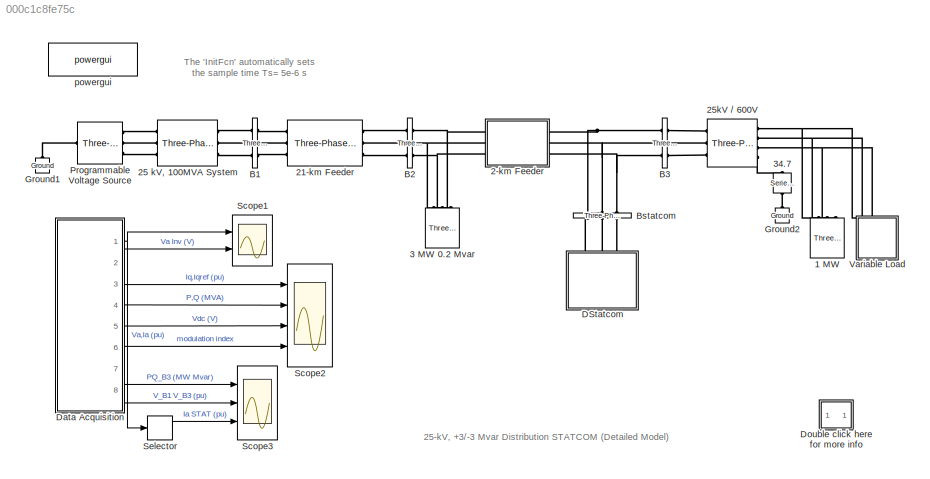
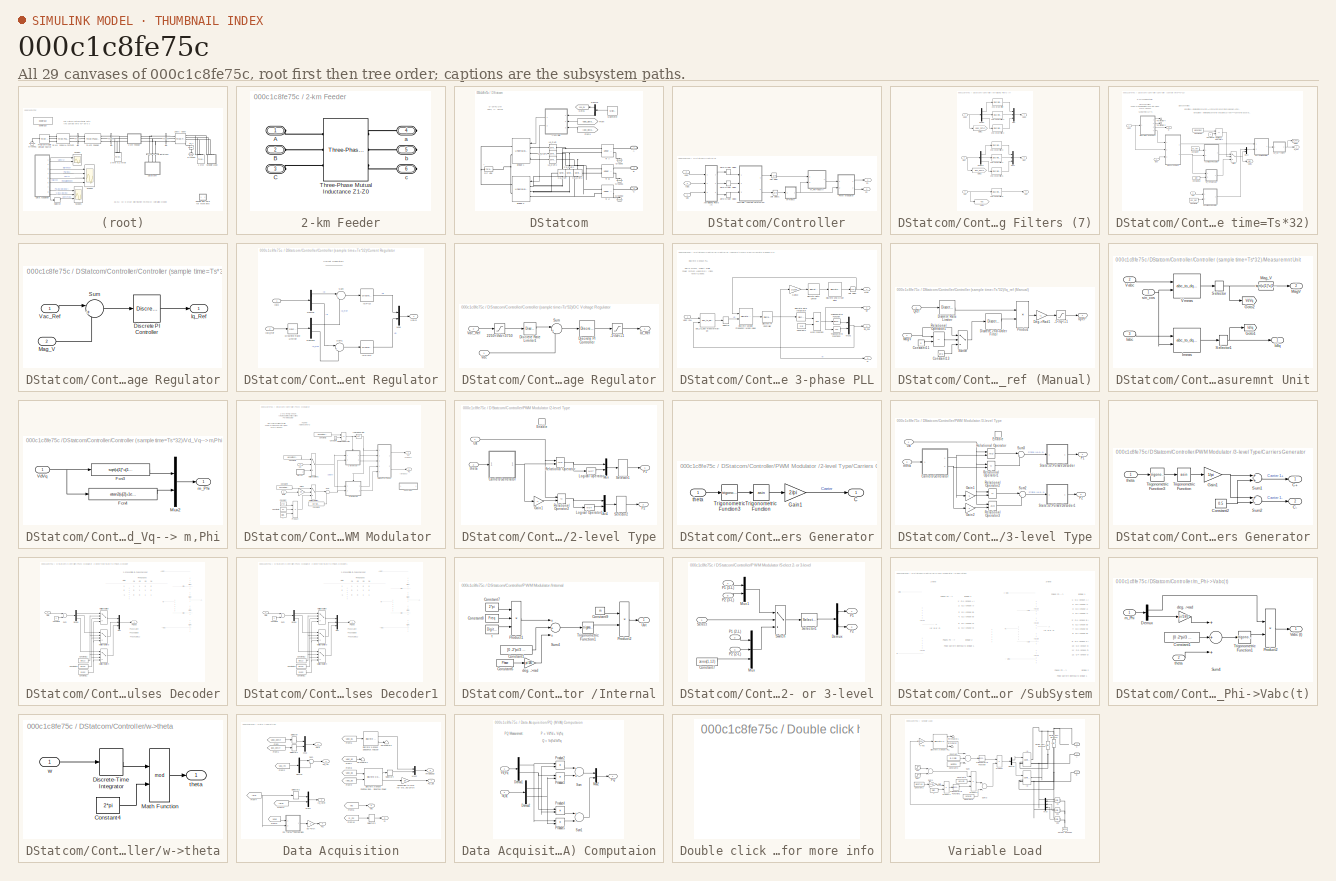
[diagram: thumbnail index - all 29 canvases of the model, root first then tree order]
MODEL slx_000c1c8fe75c
KIND model
CONFIG InitFcn =  Ts=5e-6;
BLOCK [Reference] 1 MW  REF=powerlib/Elements/Three-Phase
Parallel RLC Load
  ActivePower = 1e6
  AttributesFormatString = \n
  CapacitivePower = 0
  Configuration = Y (floating)
  InductivePower = 0
  LConnTagsString = A|B|C
  LoadType = constant Z
  Measurements = None
  NominalFrequency = 60
  NominalVoltage = 600
  Ports = [0, 0, 0, 0, 0, 3]
  SourceBlock = powerlib/Elements/Three-Phase\nParallel RLC Load
  SourceType = Three-Phase Parallel RLC Load
BLOCK [SubSystem] 2-km Feeder
  FunctionWithSeparateData = off
  MaskHideContents = off
  MinAlgLoopOccurrences = off
  Opaque = off
  Ports = [0, 0, 0, 0, 0, 3, 3]
  PropExecContextOutsideSubsystem = off
  RTWSystemCode = Auto
  RequestExecContextInheritance = off
BLOCK [PMIOPort] 2-km Feeder/A
  Port = 1
  Side = Left
BLOCK [PMIOPort] 2-km Feeder/B
  Port = 2
  Side = Left
BLOCK [PMIOPort] 2-km Feeder/C 
  Port = 3
  Side = Left
BLOCK [Reference] 2-km Feeder/Three-Phase Mutual Inductance Z1-Z0  REF=powerlib/Elements/Three-Phase
Mutual Inductance
Z1-Z0
  AttributesFormatString = \n
  LConnTagsString = a|b|c
  Ports = [0, 0, 0, 0, 0, 3, 3]
  PositiveSequence = [0.1153  1.048e-3]*2
  RConnTagsString = A|B|C
  SourceBlock = powerlib/Elements/Three-Phase\nMutual Inductance\nZ1-Z0
  SourceType = Three-Phase Mutual Inductance Z1-Z0
  ZeroSequence = [0.3963  2.730e-3]*2
BLOCK [PMIOPort] 2-km Feeder/a
  Port = 4
  Side = Right
BLOCK [PMIOPort] 2-km Feeder/b
  Port = 5
  Side = Right
BLOCK [PMIOPort] 2-km Feeder/c
  Port = 6
  Side = Right
BLOCK [Reference] 21-km Feeder  REF=powerlib/Elements/Three-Phase
PI Section Line
  AttributesFormatString = \n
  Capacitances = [11.33e-9 5.338e-9]
  Frequency = 60
  Inductances = [1.048e-3 2.730e-3]
  LConnTagsString = a|b|c
  Length = 21
  Ports = [0, 0, 0, 0, 0, 3, 3]
  RConnTagsString = A|B|C
  Resistances = [0.1153 0.3963]
  SourceBlock = powerlib/Elements/Three-Phase\nPI Section Line
  SourceType = Three-Phase PI Section Line
BLOCK [Reference] 25 kV, 100MVA System  REF=powerlib/Elements/Three-Phase
Series RLC Branch
  AttributesFormatString = \n
  BranchType = RL
  Capacitance = 1.0
  Inductance = 25e3^2/100e6/(2*pi*60)
  LConnTagsString = A|B|C
  Measurements = None
  Ports = [0, 0, 0, 0, 0, 3, 3]
  RConnTagsString = A|B|C
  Resistance = 25e3^2/100e6/10
  SourceBlock = powerlib/Elements/Three-Phase\nSeries RLC Branch
  SourceType = Three-Phase Series RLC Branch
BLOCK [Reference] 25kV // 600V  REF=powerlib/Elements/Three-Phase
Transformer
(Two Windings)
  AttributesFormatString = \n
  BreakLoop = off
  DataFile = 'basic_model'
  DataType = off
  Hysteresis = off
  InitialFluxes = [ 0.8 , -0.8 , 0.7 ]
  Lm = 500
  Measurements = None
  MoreParameters = off
  NominalPower = [6e6 60]
  Ports = [0, 0, 0, 0, 0, 3, 4]
  Rm = 500
  Saturation = [ 0,0  ;  0.005,1.2  ;  1.0,1.4 ]
  SetInitialFlux = off
  SetSaturation = off
  SourceBlock = powerlib/Elements/Three-Phase\nTransformer\n(Two Windings)
  SourceType = Three-Phase Transformer (Two Windings)
  TransfoNumber = 1
  UNITS = pu
  Winding1 = [25e3 , 0.05/30/2 , 0.05]
  Winding1Connection = Delta (D11)
  Winding2 = [600 , 0.05/30/2 , 0]
  Winding2Connection = Yn
BLOCK [Reference] 3 MW 0.2 Mvar  REF=powerlib/Elements/Three-Phase
Parallel RLC Load
  ActivePower = 3e6
  AttributesFormatString = \n
  CapacitivePower = 0.2e6
  Configuration = Y (grounded)
  InductivePower = 0
  LConnTagsString = A|B|C
  LoadType = constant Z
  Measurements = None
  NominalFrequency = 60
  NominalVoltage = 25e3
  Ports = [0, 0, 0, 0, 0, 3]
  SourceBlock = powerlib/Elements/Three-Phase\nParallel RLC Load
  SourceType = Three-Phase Parallel RLC Load
BLOCK [Reference] 34.7  REF=powerlib/Elements/Series RLC Branch
  AttributesFormatString = \n
  BranchType = R
  Capacitance = 1.0
  Inductance = 1.0
  InitialCurrent = 0
  InitialVoltage = 0
  LConnTagsString = __new0
  Measurements = None
  Ports = [0, 0, 0, 0, 0, 1, 1]
  RConnTagsString = __new0
  Resistance = 34.7
  SetiL0 = off
  Setx0 = off
  SourceBlock = powerlib/Elements/Series RLC Branch
  SourceType = Series RLC Branch
BLOCK [Reference] B1  REF=powerlib/Measurements/Three-Phase
V-I Measurement
  CurrentMeasurement = no
  Ipu = off
  LabelI = A1
  LabelV = Vabc_B1
  OutputType = Magnitude
  PSBequivalent = 0
  Pbase = 100e6
  PhasorSimulation = off
  Ports = [0, 0, 0, 0, 0, 3, 3]
  SetLabelI = off
  SetLabelV = on
  SourceBlock = powerlib/Measurements/Three-Phase\nV-I Measurement
  SourceType = Three-Phase VI Measurement
  Vbase = 25e3
  VoltageMeasurement = phase-to-ground
  Vpu = on
  VpuLL = off
BLOCK [Reference] B2  REF=powerlib/Measurements/Three-Phase
V-I Measurement
  CurrentMeasurement = no
  Ipu = off
  LabelI = Iabc_B2
  LabelV = Vabc_B2
  OutputType = Magnitude
  PSBequivalent = 0
  Pbase = 3e6
  PhasorSimulation = off
  Ports = [0, 0, 0, 0, 0, 3, 3]
  SetLabelI = off
  SetLabelV = on
  SourceBlock = powerlib/Measurements/Three-Phase\nV-I Measurement
  SourceType = Three-Phase VI Measurement
  Vbase = 25e3
  VoltageMeasurement = phase-to-ground
  Vpu = on
  VpuLL = off
BLOCK [Reference] B3  REF=powerlib/Measurements/Three-Phase
V-I Measurement
  CurrentMeasurement = yes
  Ipu = on
  LabelI = Iabc_B3
  LabelV = Vabc_B3
  OutputType = Magnitude
  PSBequivalent = 0
  Pbase = 1e6
  PhasorSimulation = off
  Ports = [0, 0, 0, 0, 0, 3, 3]
  SetLabelI = on
  SetLabelV = on
  SourceBlock = powerlib/Measurements/Three-Phase\nV-I Measurement
  SourceType = Three-Phase VI Measurement
  Vbase = 25e3
  VoltageMeasurement = phase-to-ground
  Vpu = on
  VpuLL = off
BLOCK [Reference] Bstatcom  REF=powerlib/Measurements/Three-Phase
V-I Measurement
  CurrentMeasurement = yes
  Ipu = on
  LabelI = Iabc_Bstatcom
  LabelV = Vabc_Bstatcom
  OutputType = Magnitude
  PSBequivalent = 0
  Pbase = 3e6
  PhasorSimulation = off
  Ports = [0, 0, 0, 0, 0, 3, 3]
  SetLabelI = on
  SetLabelV = on
  SourceBlock = powerlib/Measurements/Three-Phase\nV-I Measurement
  SourceType = Three-Phase VI Measurement
  Vbase = 25e3
  VoltageMeasurement = phase-to-ground
  Vpu = on
  VpuLL = off
BLOCK [SubSystem] DStatcom
  FunctionWithSeparateData = off
  MaskHideContents = off
  MinAlgLoopOccurrences = off
  Opaque = off
  Ports = [0, 0, 0, 0, 0, 0, 3]
  PropExecContextOutsideSubsystem = off
  RTWSystemCode = Auto
  RequestExecContextInheritance = off
BLOCK [PMIOPort] DStatcom/A
  Port = 1
  Side = Right
BLOCK [PMIOPort] DStatcom/B
  Port = 2
  Side = Right
BLOCK [Reference] DStatcom/Bridge 1   REF=powerlib/Power
Electronics/Universal Bridge
  Arms = 3
  AttributesFormatString = \n
  Device = IGBT / Diodes
  ForwardVoltage = .8
  ForwardVoltages = [  2  0.8  ]
  GTOparameters = [ 10e-6 , 20e-6 ]
  IGBTparameters = [ 0 0]
  Lon = 0
  Measurements = Device voltages
  Measurements_2 = None
  Ports = [1, 0, 0, 0, 0, 3, 2]
  Ron = 1e-3
  SnubberCapacitance = inf
  SnubberResistance = 1e5
  SourceBlock = powerlib/Power\nElectronics/Universal Bridge
  SourceType = Universal Bridge
  converterType = Rectifier
BLOCK [Reference] DStatcom/Bridge 2  REF=powerlib/Power
Electronics/Universal Bridge
  Arms = 3
  AttributesFormatString = \n
  Device = IGBT / Diodes
  ForwardVoltage = .8
  ForwardVoltages = [  2  0.8  ]
  GTOparameters = [ 10e-6 , 20e-6 ]
  IGBTparameters = [ 0 0]
  Lon = 0
  Measurements = Device voltages
  Measurements_2 = None
  Ports = [1, 0, 0, 0, 0, 3, 2]
  Ron = 1e-3
  SnubberCapacitance = inf
  SnubberResistance = 1e5
  SourceBlock = powerlib/Power\nElectronics/Universal Bridge
  SourceType = Universal Bridge
  converterType = Rectifier
BLOCK [PMIOPort] DStatcom/C
  Port = 3
  Side = Right
BLOCK [Reference] DStatcom/Ca_DVR  REF=powerlib/Elements/Series RLC Branch
  AttributesFormatString = \n
  BranchType = RC
  Capacitance = 100e-6
  Inductance = 1.0
  InitialCurrent = 0
  InitialVoltage = 0
  LConnTagsString = __new0
  Measurements = None
  Ports = [0, 0, 0, 0, 0, 1, 1]
  RConnTagsString = __new0
  Resistance = 100e-6*(2*pi*60)/40
  SetiL0 = off
  Setx0 = off
  SourceBlock = powerlib/Elements/Series RLC Branch
  SourceType = Series RLC Branch
BLOCK [Reference] DStatcom/Ca_DVR1  REF=powerlib/Elements/Series RLC Branch
  AttributesFormatString = \n
  BranchType = RC
  Capacitance = 100e-6
  Inductance = 1.0
  InitialCurrent = 0
  InitialVoltage = 0
  LConnTagsString = __new0
  Measurements = None
  Ports = [0, 0, 0, 0, 0, 1, 1]
  RConnTagsString = __new0
  Resistance = 100e-6*(2*pi*60)/40
  SetiL0 = off
  Setx0 = off
  SourceBlock = powerlib/Elements/Series RLC Branch
  SourceType = Series RLC Branch
BLOCK [Reference] DStatcom/Ca_DVR2  REF=powerlib/Elements/Series RLC Branch
  AttributesFormatString = \n
  BranchType = RC
  Capacitance = 100e-6
  Inductance = 1.0
  InitialCurrent = 0
  InitialVoltage = 0
  LConnTagsString = __new0
  Measurements = None
  Ports = [0, 0, 0, 0, 0, 1, 1]
  RConnTagsString = __new0
  Resistance = 100e-6*(2*pi*60)/40
  SetiL0 = off
  Setx0 = off
  SourceBlock = powerlib/Elements/Series RLC Branch
  SourceType = Series RLC Branch
BLOCK [SubSystem] DStatcom/Controller
  FunctionWithSeparateData = off
  MaskHideContents = off
  MinAlgLoopOccurrences = off
  Opaque = off
  Ports = [3, 2]
  PropExecContextOutsideSubsystem = off
  RTWSystemCode = Auto
  RequestExecContextInheritance = off
BLOCK [SubSystem] DStatcom/Controller/Anti-aliasing Filters (7)
  FunctionWithSeparateData = off
  MaskHideContents = off
  MinAlgLoopOccurrences = off
  Opaque = off
  Ports = [3, 3]
  PropExecContextOutsideSubsystem = off
  RTWSystemCode = Auto
  RequestExecContextInheritance = off
BLOCK [Outport] DStatcom/Controller/Anti-aliasing Filters (7)/ Vabc
  IconDisplay = Port number
BLOCK [Outport] DStatcom/Controller/Anti-aliasing Filters (7)/ Vdc
  IconDisplay = Port number
  Port = 3
BLOCK [Reference] DStatcom/Controller/Anti-aliasing Filters (7)/2nd-Order Filter  REF=powerlib_extras/Discrete 
Control Blocks/Discrete 
2nd-Order
Filter
  FilterType = Lowpass
  Fo = Fc
  Initialize = off
  PlotResponse = off
  Ports = [1, 1]
  SourceBlock = powerlib_extras/Discrete \nControl Blocks/Discrete \n2nd-Order\nFilter
  SourceType = Discrete 2nd-Order Filter
  Ts = Ts
  Vac_Init = [0.8 -25 60]
  Vdc_Init = -0.4
  Zeta = 0.707
  param1 = [1 5000 0.1]
BLOCK [Reference] DStatcom/Controller/Anti-aliasing Filters (7)/2nd-Order Filter1  REF=powerlib_extras/Discrete 
Control Blocks/Discrete 
2nd-Order
Filter
  FilterType = Lowpass
  Fo = Fc
  Initialize = off
  PlotResponse = off
  Ports = [1, 1]
  SourceBlock = powerlib_extras/Discrete \nControl Blocks/Discrete \n2nd-Order\nFilter
  SourceType = Discrete 2nd-Order Filter
  Ts = Ts
  Vac_Init = [0.8 -25 60]
  Vdc_Init = -0.4
  Zeta = 0.707
  param1 = [1 5000 0.1]
BLOCK [Reference] DStatcom/Controller/Anti-aliasing Filters (7)/2nd-Order Filter2  REF=powerlib_extras/Discrete 
Control Blocks/Discrete 
2nd-Order
Filter
  FilterType = Lowpass
  Fo = Fc
  Initialize = off
  PlotResponse = off
  Ports = [1, 1]
  SourceBlock = powerlib_extras/Discrete \nControl Blocks/Discrete \n2nd-Order\nFilter
  SourceType = Discrete 2nd-Order Filter
  Ts = Ts
  Vac_Init = [0.8 -25 60]
  Vdc_Init = -0.4
  Zeta = 0.707
  param1 = [1 5000 0.1]
BLOCK [Reference] DStatcom/Controller/Anti-aliasing Filters (7)/2nd-Order Filter3  REF=powerlib_extras/Discrete 
Control Blocks/Discrete 
2nd-Order
Filter
  FilterType = Lowpass
  Fo = Fc
  Initialize = off
  PlotResponse = off
  Ports = [1, 1]
  SourceBlock = powerlib_extras/Discrete \nControl Blocks/Discrete \n2nd-Order\nFilter
  SourceType = Discrete 2nd-Order Filter
  Ts = Ts
  Vac_Init = [0.8 -25 60]
  Vdc_Init = -0.4
  Zeta = 0.707
  param1 = [1 5000 0.1]
BLOCK [Reference] DStatcom/Controller/Anti-aliasing Filters (7)/2nd-Order Filter4  REF=powerlib_extras/Discrete 
Control Blocks/Discrete 
2nd-Order
Filter
  FilterType = Lowpass
  Fo = Fc
  Initialize = off
  PlotResponse = off
  Ports = [1, 1]
  SourceBlock = powerlib_extras/Discrete \nControl Blocks/Discrete \n2nd-Order\nFilter
  SourceType = Discrete 2nd-Order Filter
  Ts = Ts
  Vac_Init = [0.8 -25 60]
  Vdc_Init = -0.4
  Zeta = 0.707
  param1 = [1 5000 0.1]
BLOCK [Reference] DStatcom/Controller/Anti-aliasing Filters (7)/2nd-Order Filter5  REF=powerlib_extras/Discrete 
Control Blocks/Discrete 
2nd-Order
Filter
  FilterType = Lowpass
  Fo = Fc
  Initialize = off
  PlotResponse = off
  Ports = [1, 1]
  SourceBlock = powerlib_extras/Discrete \nControl Blocks/Discrete \n2nd-Order\nFilter
  SourceType = Discrete 2nd-Order Filter
  Ts = Ts
  Vac_Init = [0.8 -25 60]
  Vdc_Init = -0.4
  Zeta = 0.707
  param1 = [1 5000 0.1]
BLOCK [Reference] DStatcom/Controller/Anti-aliasing Filters (7)/2nd-Order Filter6  REF=powerlib_extras/Discrete 
Control Blocks/Discrete 
2nd-Order
Filter
  FilterType = Lowpass
  Fo = Fc
  Initialize = off
  PlotResponse = off
  Ports = [1, 1]
  SourceBlock = powerlib_extras/Discrete \nControl Blocks/Discrete \n2nd-Order\nFilter
  SourceType = Discrete 2nd-Order Filter
  Ts = Ts
  Vac_Init = [0.8 -25 60]
  Vdc_Init = -0.4
  Zeta = 0.707
  param1 = [1 5000 0.1]
BLOCK [Demux] DStatcom/Controller/Anti-aliasing Filters (7)/Demux
  Outputs = 3
  Ports = [1, 3]
BLOCK [Demux] DStatcom/Controller/Anti-aliasing Filters (7)/Demux1
  Outputs = 3
  Ports = [1, 3]
BLOCK [Goto] DStatcom/Controller/Anti-aliasing Filters (7)/Goto1
  GotoTag = Vabc_DSTAT
  TagVisibility = global
BLOCK [Goto] DStatcom/Controller/Anti-aliasing Filters (7)/Goto2
  GotoTag = Iabc_DSTAT
  TagVisibility = global
BLOCK [Goto] DStatcom/Controller/Anti-aliasing Filters (7)/Goto3
  GotoTag = Vdc
  TagVisibility = global
BLOCK [Outport] DStatcom/Controller/Anti-aliasing Filters (7)/Iabc
  IconDisplay = Port number
  Port = 2
BLOCK [Inport] DStatcom/Controller/Anti-aliasing Filters (7)/Iabc 
  IconDisplay = Port number
  Port = 2
  PortDimensions = 3
BLOCK [Mux] DStatcom/Controller/Anti-aliasing Filters (7)/Mux
  DisplayOption = bar
  Inputs = 3
  Ports = [3, 1]
BLOCK [Mux] DStatcom/Controller/Anti-aliasing Filters (7)/Mux1
  DisplayOption = bar
  Inputs = 3
  Ports = [3, 1]
BLOCK [Inport] DStatcom/Controller/Anti-aliasing Filters (7)/Vabc
  IconDisplay = Port number
  PortDimensions = 3
BLOCK [Inport] DStatcom/Controller/Anti-aliasing Filters (7)/Vdc 
  IconDisplay = Port number
  Port = 3
  PortDimensions = 1
BLOCK [SubSystem] DStatcom/Controller/Controller (sample time=Ts*32)
  FunctionWithSeparateData = off
  MaskHideContents = off
  MinAlgLoopOccurrences = off
  Opaque = off
  Ports = [3, 2]
  PropExecContextOutsideSubsystem = off
  RTWSystemCode = Auto
  RequestExecContextInheritance = off
BLOCK [SubSystem] DStatcom/Controller/Controller (sample time=Ts*32)/AC Voltage Regulator
  FunctionWithSeparateData = off
  MaskHideContents = off
  MinAlgLoopOccurrences = off
  Opaque = off
  Ports = [2, 1]
  PropExecContextOutsideSubsystem = off
  RTWSystemCode = Auto
  RequestExecContextInheritance = off
BLOCK [Reference] DStatcom/Controller/Controller (sample time=Ts*32)/AC Voltage Regulator/Discrete PI Controller  REF=powerlib_extras/Discrete 
Control Blocks/Discrete
PI Controller
  Init = 0
  Ki = Ki
  Kp = Kp
  Par_Limits = [1 -1]
  Ports = [1, 1]
  SourceBlock = powerlib_extras/Discrete \nControl Blocks/Discrete\nPI Controller
  SourceType = Discrete PI Controller
  Ts = Ts
BLOCK [Outport] DStatcom/Controller/Controller (sample time=Ts*32)/AC Voltage Regulator/Iq_Ref
  IconDisplay = Port number
  InitialOutput = 0
BLOCK [Inport] DStatcom/Controller/Controller (sample time=Ts*32)/AC Voltage Regulator/Mag_V
  IconDisplay = Port number
  Port = 2
BLOCK [Sum] DStatcom/Controller/Controller (sample time=Ts*32)/AC Voltage Regulator/Sum
  IconShape = round
  Inputs = |+-
  Ports = [2, 1]
BLOCK [Inport] DStatcom/Controller/Controller (sample time=Ts*32)/AC Voltage Regulator/Vac_Ref
  IconDisplay = Port number
BLOCK [Constant] DStatcom/Controller/Controller (sample time=Ts*32)/Constant10
  Value = ModeOper
BLOCK [Constant] DStatcom/Controller/Controller (sample time=Ts*32)/Constant11
BLOCK [Constant] DStatcom/Controller/Controller (sample time=Ts*32)/Constant12
  Value = Qref
BLOCK [Constant] DStatcom/Controller/Controller (sample time=Ts*32)/Constant6
  Value = Vdc_Ref
BLOCK [Constant] DStatcom/Controller/Controller (sample time=Ts*32)/Constant7
  Value = Vac_Ref
BLOCK [SubSystem] DStatcom/Controller/Controller (sample time=Ts*32)/Current Regulator
  FunctionWithSeparateData = off
  MaskHideContents = off
  MinAlgLoopOccurrences = off
  Opaque = off
  Ports = [2, 1]
  PropExecContextOutsideSubsystem = off
  RTWSystemCode = Auto
  RequestExecContextInheritance = off
BLOCK [Demux] DStatcom/Controller/Controller (sample time=Ts*32)/Current Regulator/Demux
  Outputs = 2
  Ports = [1, 2]
BLOCK [Demux] DStatcom/Controller/Controller (sample time=Ts*32)/Current Regulator/Demux1
  Outputs = 2
  Ports = [1, 2]
BLOCK [Reference] DStatcom/Controller/Controller (sample time=Ts*32)/Current Regulator/Discrete Rate Limiter  REF=powerlib_extras/Discrete 
Control Blocks/Discrete
Rate Limiter
  F = -240
  Ports = [1, 1]
  R = 240
  SourceBlock = powerlib_extras/Discrete \nControl Blocks/Discrete\nRate Limiter
  SourceType = Discrete Rate Limiter
  Ts = Ts
  Vinit = 0
BLOCK [Reference] DStatcom/Controller/Controller (sample time=Ts*32)/Current Regulator/Id PID  REF=powerlib_extras/Discrete 
Control Blocks/Discrete
PID Controller
  Init = Init
  Kd = Kd
  Ki = Ki
  Kp = Kp
  Par_Limits = Par_Limits
  Ports = [1, 1]
  SourceBlock = powerlib_extras/Discrete \nControl Blocks/Discrete\nPID Controller
  SourceType = Discrete PID Controller
  TcD = TcD
  Ts = Ts
BLOCK [Reference] DStatcom/Controller/Controller (sample time=Ts*32)/Current Regulator/Id PID1  REF=powerlib_extras/Discrete 
Control Blocks/Discrete
PID Controller
  Init = Init
  Kd = Kd
  Ki = Ki
  Kp = Kp
  Par_Limits = Par_Limits
  Ports = [1, 1]
  SourceBlock = powerlib_extras/Discrete \nControl Blocks/Discrete\nPID Controller
  SourceType = Discrete PID Controller
  TcD = TcD
  Ts = Ts
BLOCK [Inport] DStatcom/Controller/Controller (sample time=Ts*32)/Current Regulator/IdIq
  IconDisplay = Port number
  PortDimensions = 2
BLOCK [Inport] DStatcom/Controller/Controller (sample time=Ts*32)/Current Regulator/IdIq_Ref
  IconDisplay = Port number
  Port = 2
  PortDimensions = 2
BLOCK [Mux] DStatcom/Controller/Controller (sample time=Ts*32)/Current Regulator/Mux
  DisplayOption = bar
  Inputs = 2
  Ports = [2, 1]
BLOCK [Sum] DStatcom/Controller/Controller (sample time=Ts*32)/Current Regulator/Sum
  IconShape = round
  Inputs = |+-
  Ports = [2, 1]
BLOCK [Sum] DStatcom/Controller/Controller (sample time=Ts*32)/Current Regulator/Sum1
  IconShape = round
  Inputs = |+-
  Ports = [2, 1]
BLOCK [Outport] DStatcom/Controller/Controller (sample time=Ts*32)/Current Regulator/VdVq
  IconDisplay = Port number
BLOCK [SubSystem] DStatcom/Controller/Controller (sample time=Ts*32)/DC Voltage Regulator
  FunctionWithSeparateData = off
  MaskHideContents = off
  MinAlgLoopOccurrences = off
  Opaque = off
  Ports = [2, 1]
  PropExecContextOutsideSubsystem = off
  RTWSystemCode = Auto
  RequestExecContextInheritance = off
BLOCK [Saturate] DStatcom/Controller/Controller (sample time=Ts*32)/DC Voltage Regulator/-1<Id<+1
  InputPortMap = u0
  LowerLimit = -1
  Ports = [1, 1]
  UpperLimit = 1
BLOCK [Saturate] DStatcom/Controller/Controller (sample time=Ts*32)/DC Voltage Regulator/2250<Vdc<3750
  InputPortMap = u0
  LowerLimit = 2250
  Ports = [1, 1]
  UpperLimit = 3750
BLOCK [Reference] DStatcom/Controller/Controller (sample time=Ts*32)/DC Voltage Regulator/Discrete PI Controller  REF=powerlib_extras/Discrete 
Control Blocks/Discrete
PI Controller
  Init = 0
  Ki = Ki
  Kp = Kp
  Par_Limits = [1 -1]
  Ports = [1, 1]
  SourceBlock = powerlib_extras/Discrete \nControl Blocks/Discrete\nPI Controller
  SourceType = Discrete PI Controller
  Ts = Ts
BLOCK [Reference] DStatcom/Controller/Controller (sample time=Ts*32)/DC Voltage Regulator/Discrete Rate Limiter1  REF=powerlib_extras/Discrete 
Control Blocks/Discrete
Rate Limiter
  F = -10000
  Ports = [1, 1]
  R = 10000
  SourceBlock = powerlib_extras/Discrete \nControl Blocks/Discrete\nRate Limiter
  SourceType = Discrete Rate Limiter
  Ts = Ts
  Vinit = 3000
BLOCK [Outport] DStatcom/Controller/Controller (sample time=Ts*32)/DC Voltage Regulator/Id_Ref
  IconDisplay = Port number
  InitialOutput = 0
BLOCK [Sum] DStatcom/Controller/Controller (sample time=Ts*32)/DC Voltage Regulator/Sum
  IconShape = round
  Inputs = |+-
  Ports = [2, 1]
BLOCK [Inport] DStatcom/Controller/Controller (sample time=Ts*32)/DC Voltage Regulator/Vdc
  IconDisplay = Port number
BLOCK [Inport] DStatcom/Controller/Controller (sample time=Ts*32)/DC Voltage Regulator/Vdc_Ref
  IconDisplay = Port number
  Port = 2
BLOCK [SubSystem] DStatcom/Controller/Controller (sample time=Ts*32)/Discrete 3-phase PLL
  FunctionWithSeparateData = off
  MaskHideContents = off
  MinAlgLoopOccurrences = off
  Opaque = off
  Ports = [1, 4]
  PropExecContextOutsideSubsystem = off
  RTWSystemCode = Auto
  RequestExecContextInheritance = off
BLOCK [Constant] DStatcom/Controller/Controller (sample time=Ts*32)/Discrete 3-phase PLL/Constant4
  Value = 2*pi
BLOCK [Reference] DStatcom/Controller/Controller (sample time=Ts*32)/Discrete 3-phase PLL/Discrete 2nd-Order Filter  REF=powerlib_extras/Discrete 
Control Blocks/Discrete 
2nd-Order
Filter
  FilterType = Lowpass
  Fo = 25
  Initialize = on
  PlotResponse = off
  Ports = [1, 1]
  SourceBlock = powerlib_extras/Discrete \nControl Blocks/Discrete \n2nd-Order\nFilter
  SourceType = Discrete 2nd-Order Filter
  Ts = Ts
  Vac_Init = [0 0 Finit]
  Vdc_Init = Finit
  Zeta = 0.707
  param1 = [1 500 0.1]
BLOCK [Reference] DStatcom/Controller/Controller (sample time=Ts*32)/Discrete 3-phase PLL/Discrete PI Controller  REF=powerlib_extras/Discrete 
Control Blocks/Discrete
PI Controller
  Init = 2*pi*Finit
  Ki = Ki
  Kp = Kp
  Par_Limits = 2*pi*Finit*[1.25 0.75]
  Ports = [1, 1]
  SourceBlock = powerlib_extras/Discrete \nControl Blocks/Discrete\nPI Controller
  SourceType = Discrete PI Controller
  Ts = Ts
BLOCK [Reference] DStatcom/Controller/Controller (sample time=Ts*32)/Discrete 3-phase PLL/Discrete Rate Limiter  REF=powerlib_extras/Discrete 
Control Blocks/Discrete
Rate Limiter
  F = -10
  Ports = [1, 1]
  R = 10
  SourceBlock = powerlib_extras/Discrete \nControl Blocks/Discrete\nRate Limiter
  SourceType = Discrete Rate Limiter
  Ts = Ts
  Vinit = Finit
BLOCK [Reference] DStatcom/Controller/Controller (sample time=Ts*32)/Discrete 3-phase PLL/Discrete Variable Frequency Mean value  REF=powerlib_extras/Discrete
Measurements/Discrete
Variable Frequency
Mean value
  Finit = Finit
  Fmin = 45
  Ports = [2, 1]
  SourceBlock = powerlib_extras/Discrete\nMeasurements/Discrete\nVariable Frequency\nMean value
  SourceType = Discrete Variable-Frequency Mean Value
  Ts = Ts
  Vinit = 0
BLOCK [DiscreteIntegrator] DStatcom/Controller/Controller (sample time=Ts*32)/Discrete 3-phase PLL/Discrete-Time Integrator
  ICPrevOutput = DiscIntNeverNeededParam
  ICPrevScaledInput = DiscIntNeverNeededParam
  InitialCondition = Phase_Init*pi/180
  Ports = [1, 1]
  SampleTime = Ts
BLOCK [Outport] DStatcom/Controller/Controller (sample time=Ts*32)/Discrete 3-phase PLL/Freq
  IconDisplay = Port number
BLOCK [Gain] DStatcom/Controller/Controller (sample time=Ts*32)/Discrete 3-phase PLL/Gain10
  Gain = 1/2/pi
BLOCK [Math] DStatcom/Controller/Controller (sample time=Ts*32)/Discrete 3-phase PLL/Math Function
  Operator = mod
  Ports = [2, 1]
BLOCK [Mux] DStatcom/Controller/Controller (sample time=Ts*32)/Discrete 3-phase PLL/Mux2
  DisplayOption = bar
  Inputs = 2
  Ports = [2, 1]
BLOCK [Selector] DStatcom/Controller/Controller (sample time=Ts*32)/Discrete 3-phase PLL/Selector
  IndexOptions = Index vector (dialog)
  Indices = 2
  InputPortWidth = 3
  OutputSizes = 1
  Ports = [1, 1]
BLOCK [Outport] DStatcom/Controller/Controller (sample time=Ts*32)/Discrete 3-phase PLL/Sin_Cos
  IconDisplay = Port number
  Port = 4
BLOCK [Trigonometry] DStatcom/Controller/Controller (sample time=Ts*32)/Discrete 3-phase PLL/Trigonometric Function
  Ports = [1, 1]
BLOCK [Trigonometry] DStatcom/Controller/Controller (sample time=Ts*32)/Discrete 3-phase PLL/Trigonometric Function2
  Operator = cos
  Ports = [1, 1]
BLOCK [UnitDelay] DStatcom/Controller/Controller (sample time=Ts*32)/Discrete 3-phase PLL/Unit Delay
  InitialCondition = Finit
  SampleTime = Ts
BLOCK [Inport] DStatcom/Controller/Controller (sample time=Ts*32)/Discrete 3-phase PLL/Vabc (pu)
  IconDisplay = Port number
  PortDimensions = 3
BLOCK [Reference] DStatcom/Controller/Controller (sample time=Ts*32)/Discrete 3-phase PLL/abc_to_dq0 Transformation  REF=powerlib_extras/Measurements/abc_to_dq0
Transformation
  Ports = [2, 1]
  SourceBlock = powerlib_extras/Measurements/abc_to_dq0\nTransformation
  SourceType = abc to dq0 Transformation
BLOCK [Outport] DStatcom/Controller/Controller (sample time=Ts*32)/Discrete 3-phase PLL/w
  IconDisplay = Port number
  Port = 3
BLOCK [Outport] DStatcom/Controller/Controller (sample time=Ts*32)/Discrete 3-phase PLL/wt
  IconDisplay = Port number
  Port = 2
BLOCK [Goto] DStatcom/Controller/Controller (sample time=Ts*32)/Goto1
  GotoTag = Iqref
  TagVisibility = global
BLOCK [Goto] DStatcom/Controller/Controller (sample time=Ts*32)/Goto5
  GotoTag = m_Phi
  TagVisibility = global
BLOCK [Inport] DStatcom/Controller/Controller (sample time=Ts*32)/Iabc
  IconDisplay = Port number
  Port = 2
  PortDimensions = 3
BLOCK [SubSystem] DStatcom/Controller/Controller (sample time=Ts*32)/Iq_ref (Manual)
  FunctionWithSeparateData = off
  MaskHideContents = off
  MinAlgLoopOccurrences = off
  Opaque = off
  Ports = [2, 1]
  PropExecContextOutsideSubsystem = off
  RTWSystemCode = Auto
  RequestExecContextInheritance = off
BLOCK [Saturate] DStatcom/Controller/Controller (sample time=Ts*32)/Iq_ref (Manual)/-1<Iq<+1
  InputPortMap = u0
  LowerLimit = -1
  Ports = [1, 1]
  UpperLimit = 1
BLOCK [Constant] DStatcom/Controller/Controller (sample time=Ts*32)/Iq_ref (Manual)/Constant11
  Value = 0
BLOCK [Constant] DStatcom/Controller/Controller (sample time=Ts*32)/Iq_ref (Manual)/Constant13
  Value = 1e-6
BLOCK [Gain] DStatcom/Controller/Controller (sample time=Ts*32)/Iq_ref (Manual)/Deg->Rad1
  Gain = -1
BLOCK [Reference] DStatcom/Controller/Controller (sample time=Ts*32)/Iq_ref (Manual)/Discrete 2nd-Order Filter  REF=powerlib_extras/Discrete 
Control Blocks/Discrete 
2nd-Order
Filter
  FilterType = Lowpass
  Fo = 20
  Initialize = off
  PlotResponse = off
  Ports = [1, 1]
  SourceBlock = powerlib_extras/Discrete \nControl Blocks/Discrete \n2nd-Order\nFilter
  SourceType = Discrete 2nd-Order Filter
  Ts = 32*Ts
  Vac_Init = [0.8 -25 60]
  Vdc_Init = -0.4
  Zeta = 0.707
  param1 = [1 500 0.1]
BLOCK [Reference] DStatcom/Controller/Controller (sample time=Ts*32)/Iq_ref (Manual)/Discrete Rate Limiter  REF=powerlib_extras/Discrete 
Control Blocks/Discrete
Rate Limiter
  F = -60*2
  Ports = [1, 1]
  R = 60*2
  SourceBlock = powerlib_extras/Discrete \nControl Blocks/Discrete\nRate Limiter
  SourceType = Discrete Rate Limiter
  Ts = 32*Ts
  Vinit = 0
BLOCK [Outport] DStatcom/Controller/Controller (sample time=Ts*32)/Iq_ref (Manual)/Iqref*
  IconDisplay = Port number
BLOCK [Inport] DStatcom/Controller/Controller (sample time=Ts*32)/Iq_ref (Manual)/MagV
  IconDisplay = Port number
  PortDimensions = 1
BLOCK [Product] DStatcom/Controller/Controller (sample time=Ts*32)/Iq_ref (Manual)/Product
  Inputs = */
  Ports = [2, 1]
  RndMeth = Floor
BLOCK [Inport] DStatcom/Controller/Controller (sample time=Ts*32)/Iq_ref (Manual)/Qref
  IconDisplay = Port number
  Port = 2
  PortDimensions = 1
BLOCK [RelationalOperator] DStatcom/Controller/Controller (sample time=Ts*32)/Iq_ref (Manual)/Relational Operator1
  Operator = ~=
  Ports = [2, 1]
BLOCK [Switch] DStatcom/Controller/Controller (sample time=Ts*32)/Iq_ref (Manual)/Switch
  Threshold = 0.5
BLOCK [SubSystem] DStatcom/Controller/Controller (sample time=Ts*32)/Measuremnt Unit
  FunctionWithSeparateData = off
  MaskHideContents = off
  MinAlgLoopOccurrences = off
  Opaque = off
  Ports = [3, 2]
  PropExecContextOutsideSubsystem = off
  RTWSystemCode = Auto
  RequestExecContextInheritance = off
BLOCK [Goto] DStatcom/Controller/Controller (sample time=Ts*32)/Measuremnt Unit/Goto1
  GotoTag = IdIq
  TagVisibility = global
BLOCK [Goto] DStatcom/Controller/Controller (sample time=Ts*32)/Measuremnt Unit/Goto2
  GotoTag = VdVq
  TagVisibility = global
BLOCK [Inport] DStatcom/Controller/Controller (sample time=Ts*32)/Measuremnt Unit/Iabc
  IconDisplay = Port number
  Port = 3
BLOCK [Outport] DStatcom/Controller/Controller (sample time=Ts*32)/Measuremnt Unit/IdIq
  IconDisplay = Port number
BLOCK [Reference] DStatcom/Controller/Controller (sample time=Ts*32)/Measuremnt Unit/Imeas  REF=powerlib_extras/Measurements/abc_to_dq0
Transformation
  Ports = [2, 1]
  SourceBlock = powerlib_extras/Measurements/abc_to_dq0\nTransformation
  SourceType = abc to dq0 Transformation
BLOCK [Outport] DStatcom/Controller/Controller (sample time=Ts*32)/Measuremnt Unit/MagV
  IconDisplay = Port number
  Port = 2
BLOCK [Fcn] DStatcom/Controller/Controller (sample time=Ts*32)/Measuremnt Unit/Mag_V 
  Expr = sqrt(u[1]*u[1]+u[2]*u[2])
BLOCK [Selector] DStatcom/Controller/Controller (sample time=Ts*32)/Measuremnt Unit/Selector
  IndexOptions = Index vector (dialog)
  Indices = [1 2]
  InputPortWidth = 3
  OutputSizes = 1
  Ports = [1, 1]
BLOCK [Selector] DStatcom/Controller/Controller (sample time=Ts*32)/Measuremnt Unit/Selector1
  IndexOptions = Index vector (dialog)
  Indices = [1 2]
  InputPortWidth = 3
  OutputSizes = 1
  Ports = [1, 1]
BLOCK [Inport] DStatcom/Controller/Controller (sample time=Ts*32)/Measuremnt Unit/Vabc
  IconDisplay = Port number
  Port = 2
BLOCK [Reference] DStatcom/Controller/Controller (sample time=Ts*32)/Measuremnt Unit/Vmeas  REF=powerlib_extras/Measurements/abc_to_dq0
Transformation
  Ports = [2, 1]
  SourceBlock = powerlib_extras/Measurements/abc_to_dq0\nTransformation
  SourceType = abc to dq0 Transformation
BLOCK [Inport] DStatcom/Controller/Controller (sample time=Ts*32)/Measuremnt Unit/sin_cos
  IconDisplay = Port number
BLOCK [Mux] DStatcom/Controller/Controller (sample time=Ts*32)/Mux3
  DisplayOption = bar
  Inputs = 2
  Ports = [2, 1]
BLOCK [RelationalOperator] DStatcom/Controller/Controller (sample time=Ts*32)/Relational Operator1
  Operator = ==
  Ports = [2, 1]
BLOCK [Switch] DStatcom/Controller/Controller (sample time=Ts*32)/Switch
  Threshold = 0.5
BLOCK [Terminator] DStatcom/Controller/Controller (sample time=Ts*32)/Terminator3
BLOCK [Terminator] DStatcom/Controller/Controller (sample time=Ts*32)/Terminator4
BLOCK [Inport] DStatcom/Controller/Controller (sample time=Ts*32)/Vabc
  IconDisplay = Port number
  PortDimensions = 3
BLOCK [SubSystem] DStatcom/Controller/Controller (sample time=Ts*32)/Vd_Vq--> m,Phi
  FunctionWithSeparateData = off
  MaskHideContents = off
  MinAlgLoopOccurrences = off
  Opaque = off
  Ports = [1, 1]
  PropExecContextOutsideSubsystem = off
  RTWSystemCode = Auto
  RequestExecContextInheritance = off
BLOCK [Fcn] DStatcom/Controller/Controller (sample time=Ts*32)/Vd_Vq--> m,Phi/Fcn3
  Expr = sqrt(u[1]*u[1]+u[2]*u[2])
BLOCK [Fcn] DStatcom/Controller/Controller (sample time=Ts*32)/Vd_Vq--> m,Phi/Fcn4
  Expr = atan2(u[2]+1e-6,u[1])*180/pi
BLOCK [Mux] DStatcom/Controller/Controller (sample time=Ts*32)/Vd_Vq--> m,Phi/Mux2
  DisplayOption = bar
  Inputs = 2
  Ports = [2, 1]
BLOCK [Inport] DStatcom/Controller/Controller (sample time=Ts*32)/Vd_Vq--> m,Phi/VdVq
  IconDisplay = Port number
BLOCK [Outport] DStatcom/Controller/Controller (sample time=Ts*32)/Vd_Vq--> m,Phi/m_Phi
  IconDisplay = Port number
BLOCK [Inport] DStatcom/Controller/Controller (sample time=Ts*32)/Vdc
  IconDisplay = Port number
  Port = 3
  PortDimensions = 1
BLOCK [Outport] DStatcom/Controller/Controller (sample time=Ts*32)/m_Phi
  IconDisplay = Port number
BLOCK [Outport] DStatcom/Controller/Controller (sample time=Ts*32)/w
  IconDisplay = Port number
  Port = 2
BLOCK [Inport] DStatcom/Controller/Iabc
  IconDisplay = Port number
  Port = 3
  PortDimensions = 3
BLOCK [Outport] DStatcom/Controller/P1
  IconDisplay = Port number
BLOCK [Outport] DStatcom/Controller/P2
  IconDisplay = Port number
  Port = 2
BLOCK [SubSystem] DStatcom/Controller/PWM Modulator 
  FunctionWithSeparateData = off
  MaskHideContents = off
  MinAlgLoopOccurrences = off
  Opaque = off
  Ports = [2, 2]
  PropExecContextOutsideSubsystem = off
  RTWSystemCode = Auto
  RequestExecContextInheritance = off
BLOCK [SubSystem] DStatcom/Controller/PWM Modulator /2-level Type
  FunctionWithSeparateData = off
  MaskHideContents = off
  MinAlgLoopOccurrences = off
  Opaque = off
  Ports = [2, 2, 1]
  PropExecContextOutsideSubsystem = off
  RTWSystemCode = Auto
  RequestExecContextInheritance = off
  TreatAsAtomicUnit = on
BLOCK [SubSystem] DStatcom/Controller/PWM Modulator /2-level Type/Carriers Generator
  FunctionWithSeparateData = off
  MaskHideContents = off
  MinAlgLoopOccurrences = off
  Opaque = off
  Ports = [1, 1]
  PropExecContextOutsideSubsystem = off
  RTWSystemCode = Auto
  RequestExecContextInheritance = off
BLOCK [Outport] DStatcom/Controller/PWM Modulator /2-level Type/Carriers Generator/C
  IconDisplay = Port number
BLOCK [Gain] DStatcom/Controller/PWM Modulator /2-level Type/Carriers Generator/Gain1
  Gain = 2/pi
BLOCK [Trigonometry] DStatcom/Controller/PWM Modulator /2-level Type/Carriers Generator/Trigonometric Function
  Operator = asin
  Ports = [1, 1]
BLOCK [Trigonometry] DStatcom/Controller/PWM Modulator /2-level Type/Carriers Generator/Trigonometric Function3
  Ports = [1, 1]
BLOCK [Inport] DStatcom/Controller/PWM Modulator /2-level Type/Carriers Generator/theta
  IconDisplay = Port number
  PortDimensions = 3
BLOCK [EnablePort] DStatcom/Controller/PWM Modulator /2-level Type/Enable
  Ports = []
  PropagateVarSize = During execution
BLOCK [Gain] DStatcom/Controller/PWM Modulator /2-level Type/Gain1
  Gain = -1
BLOCK [Logic] DStatcom/Controller/PWM Modulator /2-level Type/Logical Operator
  Operator = NOT
  Ports = [1, 1]
BLOCK [Logic] DStatcom/Controller/PWM Modulator /2-level Type/Logical Operator1
  Operator = NOT
  Ports = [1, 1]
BLOCK [Mux] DStatcom/Controller/PWM Modulator /2-level Type/Mux
  DisplayOption = bar
  Inputs = [3 3]
  Ports = [2, 1]
BLOCK [Mux] DStatcom/Controller/PWM Modulator /2-level Type/Mux1
  DisplayOption = bar
  Inputs = [3 3]
  Ports = [2, 1]
BLOCK [Outport] DStatcom/Controller/PWM Modulator /2-level Type/P1
  IconDisplay = Port number
BLOCK [Outport] DStatcom/Controller/PWM Modulator /2-level Type/P2
  IconDisplay = Port number
  Port = 2
BLOCK [RelationalOperator] DStatcom/Controller/PWM Modulator /2-level Type/Relational Operator
  Ports = [2, 1]
BLOCK [RelationalOperator] DStatcom/Controller/PWM Modulator /2-level Type/Relational Operator2
  Operator = <=
  Ports = [2, 1]
BLOCK [Selector] DStatcom/Controller/PWM Modulator /2-level Type/Selector1
  IndexOptions = Index vector (dialog)
  Indices = [1 4 2 5 3 6]
  InputPortWidth = 6
  OutputSizes = 1
  Ports = [1, 1]
BLOCK [Selector] DStatcom/Controller/PWM Modulator /2-level Type/Selector2
  IndexOptions = Index vector (dialog)
  Indices = [1 4 2 5 3 6]
  InputPortWidth = 6
  OutputSizes = 1
  Ports = [1, 1]
BLOCK [Inport] DStatcom/Controller/PWM Modulator /2-level Type/Ust
  IconDisplay = Port number
BLOCK [Inport] DStatcom/Controller/PWM Modulator /2-level Type/theta
  IconDisplay = Port number
  Port = 2
BLOCK [SubSystem] DStatcom/Controller/PWM Modulator /3-level Type
  FunctionWithSeparateData = off
  MaskHideContents = off
  MinAlgLoopOccurrences = off
  Opaque = off
  Ports = [2, 2, 1]
  PropExecContextOutsideSubsystem = off
  RTWSystemCode = Auto
  RequestExecContextInheritance = off
  TreatAsAtomicUnit = on
BLOCK [SubSystem] DStatcom/Controller/PWM Modulator /3-level Type/Carriers Generator
  FunctionWithSeparateData = off
  MaskHideContents = off
  MinAlgLoopOccurrences = off
  Opaque = off
  Ports = [1, 2]
  PropExecContextOutsideSubsystem = off
  RTWSystemCode = Auto
  RequestExecContextInheritance = off
BLOCK [Outport] DStatcom/Controller/PWM Modulator /3-level Type/Carriers Generator/C+
  IconDisplay = Port number
BLOCK [Outport] DStatcom/Controller/PWM Modulator /3-level Type/Carriers Generator/C-
  IconDisplay = Port number
  Port = 2
BLOCK [Constant] DStatcom/Controller/PWM Modulator /3-level Type/Carriers Generator/Constant2
  Value = 0.5
BLOCK [Gain] DStatcom/Controller/PWM Modulator /3-level Type/Carriers Generator/Gain1
  Gain = 1/pi
BLOCK [Sum] DStatcom/Controller/PWM Modulator /3-level Type/Carriers Generator/Sum1
  Ports = [2, 1]
BLOCK [Sum] DStatcom/Controller/PWM Modulator /3-level Type/Carriers Generator/Sum2
  Inputs = +-
  Ports = [2, 1]
BLOCK [Trigonometry] DStatcom/Controller/PWM Modulator /3-level Type/Carriers Generator/Trigonometric Function
  Operator = asin
  Ports = [1, 1]
BLOCK [Trigonometry] DStatcom/Controller/PWM Modulator /3-level Type/Carriers Generator/Trigonometric Function3
  Ports = [1, 1]
BLOCK [Inport] DStatcom/Controller/PWM Modulator /3-level Type/Carriers Generator/theta
  IconDisplay = Port number
  PortDimensions = 3
BLOCK [EnablePort] DStatcom/Controller/PWM Modulator /3-level Type/Enable
  Ports = []
  PropagateVarSize = During execution
BLOCK [Gain] DStatcom/Controller/PWM Modulator /3-level Type/Gain1
  Gain = -1
BLOCK [Gain] DStatcom/Controller/PWM Modulator /3-level Type/Gain2
  Gain = -1
BLOCK [Outport] DStatcom/Controller/PWM Modulator /3-level Type/P1
  IconDisplay = Port number
BLOCK [Outport] DStatcom/Controller/PWM Modulator /3-level Type/P2
  IconDisplay = Port number
  Port = 2
BLOCK [RelationalOperator] DStatcom/Controller/PWM Modulator /3-level Type/Relational Operator
  Ports = [2, 1]
BLOCK [RelationalOperator] DStatcom/Controller/PWM Modulator /3-level Type/Relational Operator1
  Operator = <=
  Ports = [2, 1]
BLOCK [RelationalOperator] DStatcom/Controller/PWM Modulator /3-level Type/Relational Operator2
  Operator = <=
  Ports = [2, 1]
BLOCK [RelationalOperator] DStatcom/Controller/PWM Modulator /3-level Type/Relational Operator3
  Ports = [2, 1]
BLOCK [SubSystem] DStatcom/Controller/PWM Modulator /3-level Type/State-to-Pulses Decoder
  FunctionWithSeparateData = off
  MaskHideContents = off
  MinAlgLoopOccurrences = off
  Opaque = off
  Ports = [1, 1]
  PropExecContextOutsideSubsystem = off
  RTWSystemCode = Auto
  RequestExecContextInheritance = off
BLOCK [Constant] DStatcom/Controller/PWM Modulator /3-level Type/State-to-Pulses Decoder/Constant11
  Value = [1 1 0 0]
BLOCK [Constant] DStatcom/Controller/PWM Modulator /3-level Type/State-to-Pulses Decoder/Constant12
  Value = [0 0 1 1]
BLOCK [Constant] DStatcom/Controller/PWM Modulator /3-level Type/State-to-Pulses Decoder/Constant13
  Value = [0 1 1 0]
BLOCK [Constant] DStatcom/Controller/PWM Modulator /3-level Type/State-to-Pulses Decoder/Constant2
  Value = 2
BLOCK [Demux] DStatcom/Controller/PWM Modulator /3-level Type/State-to-Pulses Decoder/Demux
  Outputs = 3
  Ports = [1, 3]
BLOCK [MultiPortSwitch] DStatcom/Controller/PWM Modulator /3-level Type/State-to-Pulses Decoder/Multiport Switch
  Ports = [4, 1]
BLOCK [MultiPortSwitch] DStatcom/Controller/PWM Modulator /3-level Type/State-to-Pulses Decoder/Multiport Switch3
  Ports = [4, 1]
BLOCK [MultiPortSwitch] DStatcom/Controller/PWM Modulator /3-level Type/State-to-Pulses Decoder/Multiport Switch4
  Ports = [4, 1]
BLOCK [Mux] DStatcom/Controller/PWM Modulator /3-level Type/State-to-Pulses Decoder/Mux
  DisplayOption = bar
  Inputs = [4 4 4]
  Ports = [3, 1]
BLOCK [Outport] DStatcom/Controller/PWM Modulator /3-level Type/State-to-Pulses Decoder/Pulses
  IconDisplay = Port number
BLOCK [Inport] DStatcom/Controller/PWM Modulator /3-level Type/State-to-Pulses Decoder/State
  IconDisplay = Port number
  PortDimensions = 3
BLOCK [Sum] DStatcom/Controller/PWM Modulator /3-level Type/State-to-Pulses Decoder/Sum
  Ports = [2, 1]
BLOCK [SubSystem] DStatcom/Controller/PWM Modulator /3-level Type/State-to-Pulses Decoder1
  FunctionWithSeparateData = off
  MaskHideContents = off
  MinAlgLoopOccurrences = off
  Opaque = off
  Ports = [1, 1]
  PropExecContextOutsideSubsystem = off
  RTWSystemCode = Auto
  RequestExecContextInheritance = off
BLOCK [Constant] DStatcom/Controller/PWM Modulator /3-level Type/State-to-Pulses Decoder1/Constant11
  Value = [1 1 0 0]
BLOCK [Constant] DStatcom/Controller/PWM Modulator /3-level Type/State-to-Pulses Decoder1/Constant12
  Value = [0 0 1 1]
BLOCK [Constant] DStatcom/Controller/PWM Modulator /3-level Type/State-to-Pulses Decoder1/Constant13
  Value = [0 1 1 0]
BLOCK [Constant] DStatcom/Controller/PWM Modulator /3-level Type/State-to-Pulses Decoder1/Constant2
  Value = 2
BLOCK [Demux] DStatcom/Controller/PWM Modulator /3-level Type/State-to-Pulses Decoder1/Demux
  Outputs = 3
  Ports = [1, 3]
BLOCK [MultiPortSwitch] DStatcom/Controller/PWM Modulator /3-level Type/State-to-Pulses Decoder1/Multiport Switch
  Ports = [4, 1]
BLOCK [MultiPortSwitch] DStatcom/Controller/PWM Modulator /3-level Type/State-to-Pulses Decoder1/Multiport Switch3
  Ports = [4, 1]
BLOCK [MultiPortSwitch] DStatcom/Controller/PWM Modulator /3-level Type/State-to-Pulses Decoder1/Multiport Switch4
  Ports = [4, 1]
BLOCK [Mux] DStatcom/Controller/PWM Modulator /3-level Type/State-to-Pulses Decoder1/Mux
  DisplayOption = bar
  Inputs = [4 4 4]
  Ports = [3, 1]
BLOCK [Outport] DStatcom/Controller/PWM Modulator /3-level Type/State-to-Pulses Decoder1/Pulses
  IconDisplay = Port number
BLOCK [Inport] DStatcom/Controller/PWM Modulator /3-level Type/State-to-Pulses Decoder1/State
  IconDisplay = Port number
  PortDimensions = 3
BLOCK [Sum] DStatcom/Controller/PWM Modulator /3-level Type/State-to-Pulses Decoder1/Sum
  Ports = [2, 1]
BLOCK [Sum] DStatcom/Controller/PWM Modulator /3-level Type/Sum2
  IconShape = round
  Inputs = |+-
  Ports = [2, 1]
BLOCK [Sum] DStatcom/Controller/PWM Modulator /3-level Type/Sum3
  IconShape = round
  Inputs = |+-
  Ports = [2, 1]
BLOCK [Inport] DStatcom/Controller/PWM Modulator /3-level Type/Ust
  IconDisplay = Port number
BLOCK [Inport] DStatcom/Controller/PWM Modulator /3-level Type/theta
  IconDisplay = Port number
  Port = 2
BLOCK [Constant] DStatcom/Controller/PWM Modulator /Constant
  Value = 2*pi
BLOCK [Constant] DStatcom/Controller/PWM Modulator /Constant1
  Value = [0 -2*pi/3 2*pi/3]
BLOCK [Constant] DStatcom/Controller/PWM Modulator /Constant2
  Value = ModulatorType
BLOCK [Constant] DStatcom/Controller/PWM Modulator /Constant3
  Value = Fc
BLOCK [Constant] DStatcom/Controller/PWM Modulator /Constant4
  Value = ModulatorMode
BLOCK [Constant] DStatcom/Controller/PWM Modulator /Constant5
  Value = ModulatingSignals
BLOCK [Constant] DStatcom/Controller/PWM Modulator /Constant6
BLOCK [Gain] DStatcom/Controller/PWM Modulator /Gain4
  Gain = nF
BLOCK [SubSystem] DStatcom/Controller/PWM Modulator /Internal
  FunctionWithSeparateData = off
  MaskHideContents = off
  MinAlgLoopOccurrences = off
  Opaque = off
  Ports = [0, 1]
  PropExecContextOutsideSubsystem = off
  RTWSystemCode = Auto
  RequestExecContextInheritance = off
BLOCK [Constant] DStatcom/Controller/PWM Modulator /Internal/Constant1
  Value = [0 -2*pi/3 2*pi/3]
BLOCK [Constant] DStatcom/Controller/PWM Modulator /Internal/Constant6
  Value = Phase
BLOCK [Constant] DStatcom/Controller/PWM Modulator /Internal/Constant7
  Value = 2*pi
BLOCK [Constant] DStatcom/Controller/PWM Modulator /Internal/Constant8
  Value = Freq
BLOCK [Constant] DStatcom/Controller/PWM Modulator /Internal/Constant9
  Value = m
BLOCK [Product] DStatcom/Controller/PWM Modulator /Internal/Product1
  Inputs = 3
  Ports = [3, 1]
  RndMeth = Floor
BLOCK [Product] DStatcom/Controller/PWM Modulator /Internal/Product2
  Ports = [2, 1]
  RndMeth = Floor
BLOCK [Sum] DStatcom/Controller/PWM Modulator /Internal/Sum4
  Inputs = +++
  Ports = [3, 1]
BLOCK [Trigonometry] DStatcom/Controller/PWM Modulator /Internal/Trigonometric Function1
  Ports = [1, 1]
BLOCK [Outport] DStatcom/Controller/PWM Modulator /Internal/Ust
  IconDisplay = Port number
BLOCK [Gain] DStatcom/Controller/PWM Modulator /Internal/deg. ->rad
  Gain = pi/180
BLOCK [DigitalClock] DStatcom/Controller/PWM Modulator /Internal/t 
  SampleTime = Ts
BLOCK [Logic] DStatcom/Controller/PWM Modulator /Logical Operator
  Operator = NOT
  Ports = [1, 1]
BLOCK [MultiPortSwitch] DStatcom/Controller/PWM Modulator /Multiport Switch
  Inputs = 2
  Ports = [3, 1]
BLOCK [MultiPortSwitch] DStatcom/Controller/PWM Modulator /Multiport Switch1
  Inputs = 2
  Ports = [3, 1]
BLOCK [Outport] DStatcom/Controller/PWM Modulator /P1
  IconDisplay = Port number
BLOCK [Outport] DStatcom/Controller/PWM Modulator /P2
  IconDisplay = Port number
  Port = 2
BLOCK [Product] DStatcom/Controller/PWM Modulator /Product
  Inputs = 3
  Ports = [3, 1]
  RndMeth = Floor
BLOCK [RelationalOperator] DStatcom/Controller/PWM Modulator /Relational Operator
  Operator = ==
  Ports = [2, 1]
BLOCK [SubSystem] DStatcom/Controller/PWM Modulator /Select 2- or 3-level
  FunctionWithSeparateData = off
  MaskHideContents = off
  MinAlgLoopOccurrences = off
  Opaque = off
  Ports = [5, 2]
  PropExecContextOutsideSubsystem = off
  RTWSystemCode = Auto
  RequestExecContextInheritance = off
BLOCK [Constant] DStatcom/Controller/PWM Modulator /Select 2- or 3-level/Constant7
  Value = zeros(1,12)
BLOCK [Demux] DStatcom/Controller/PWM Modulator /Select 2- or 3-level/Demux
  Outputs = [nPulses nPulses]
  Ports = [1, 2]
BLOCK [Mux] DStatcom/Controller/PWM Modulator /Select 2- or 3-level/Mux
  DisplayOption = bar
  Inputs = [6 6 12]
  Ports = [3, 1]
BLOCK [Mux] DStatcom/Controller/PWM Modulator /Select 2- or 3-level/Mux1
  DisplayOption = bar
  Inputs = [12 12]
  Ports = [2, 1]
BLOCK [Outport] DStatcom/Controller/PWM Modulator /Select 2- or 3-level/P1
  IconDisplay = Port number
BLOCK [Inport] DStatcom/Controller/PWM Modulator /Select 2- or 3-level/P1 (2-L)
  IconDisplay = Port number
  Port = 2
  PortDimensions = 6
BLOCK [Inport] DStatcom/Controller/PWM Modulator /Select 2- or 3-level/P1 (3-L)
  IconDisplay = Port number
  Port = 4
  PortDimensions = 12
BLOCK [Outport] DStatcom/Controller/PWM Modulator /Select 2- or 3-level/P2
  IconDisplay = Port number
  Port = 2
BLOCK [Inport] DStatcom/Controller/PWM Modulator /Select 2- or 3-level/P2 (2-L)
  IconDisplay = Port number
  Port = 3
  PortDimensions = 6
BLOCK [Inport] DStatcom/Controller/PWM Modulator /Select 2- or 3-level/P2 (3-L)
  IconDisplay = Port number
  Port = 5
  PortDimensions = 12
BLOCK [Inport] DStatcom/Controller/PWM Modulator /Select 2- or 3-level/Select
  IconDisplay = Port number
  PortDimensions = 1
BLOCK [Selector] DStatcom/Controller/PWM Modulator /Select 2- or 3-level/Selector1
  IndexOptions = Index vector (dialog)
  Indices = SelectorElements
  InputPortWidth = 24
  OutputSizes = 1
  Ports = [1, 1]
BLOCK [Switch] DStatcom/Controller/PWM Modulator /Select 2- or 3-level/Switch
  Threshold = 0.5
BLOCK [SubSystem] DStatcom/Controller/PWM Modulator /SubSystem
  FunctionWithSeparateData = off
  MaskHideContents = off
  MinAlgLoopOccurrences = off
  Opaque = off
  Ports = []
  PropExecContextOutsideSubsystem = off
  RTWSystemCode = Auto
  RequestExecContextInheritance = off
BLOCK [Sum] DStatcom/Controller/PWM Modulator /Sum
  IconShape = round
  Inputs = |++
  Ports = [2, 1]
BLOCK [Inport] DStatcom/Controller/PWM Modulator /Ust
  IconDisplay = Port number
  PortDimensions = 3
BLOCK [DigitalClock] DStatcom/Controller/PWM Modulator /t
  SampleTime = Ts
BLOCK [Inport] DStatcom/Controller/PWM Modulator /theta
  IconDisplay = Port number
  Port = 2
  PortDimensions = 1
BLOCK [UnitDelay] DStatcom/Controller/Unit Delay
  SampleTime = Ts*32
BLOCK [UnitDelay] DStatcom/Controller/Unit Delay1
  SampleTime = Ts*32
BLOCK [Inport] DStatcom/Controller/Vabc
  IconDisplay = Port number
  Port = 2
  PortDimensions = 3
BLOCK [Inport] DStatcom/Controller/Vdc
  IconDisplay = Port number
  PortDimensions = 1
BLOCK [ZeroOrderHold] DStatcom/Controller/Zero-Order Hold1
  SampleTime = Ts*32
BLOCK [ZeroOrderHold] DStatcom/Controller/Zero-Order Hold2
  SampleTime = Ts*32
BLOCK [ZeroOrderHold] DStatcom/Controller/Zero-Order Hold3
  SampleTime = Ts*32
BLOCK [SubSystem] DStatcom/Controller/m_Phi->Vabc(t)
  FunctionWithSeparateData = off
  MaskHideContents = off
  MinAlgLoopOccurrences = off
  Opaque = off
  Ports = [2, 1]
  PropExecContextOutsideSubsystem = off
  RTWSystemCode = Auto
  RequestExecContextInheritance = off
BLOCK [Constant] DStatcom/Controller/m_Phi->Vabc(t)/Constant1
  Value = [0 -2*pi/3 2*pi/3]
BLOCK [Demux] DStatcom/Controller/m_Phi->Vabc(t)/Demux
  Outputs = 2
  Ports = [1, 2]
BLOCK [Product] DStatcom/Controller/m_Phi->Vabc(t)/Product2
  Ports = [2, 1]
  RndMeth = Floor
BLOCK [Sum] DStatcom/Controller/m_Phi->Vabc(t)/Sum4
  Inputs = +++
  Ports = [3, 1]
BLOCK [Trigonometry] DStatcom/Controller/m_Phi->Vabc(t)/Trigonometric Function1
  Ports = [1, 1]
BLOCK [Outport] DStatcom/Controller/m_Phi->Vabc(t)/Vabc (t)
  IconDisplay = Port number
BLOCK [Gain] DStatcom/Controller/m_Phi->Vabc(t)/deg. ->rad
  Gain = pi/180
BLOCK [Inport] DStatcom/Controller/m_Phi->Vabc(t)/m_Phi
  IconDisplay = Port number
BLOCK [Inport] DStatcom/Controller/m_Phi->Vabc(t)/theta
  IconDisplay = Port number
  Port = 2
BLOCK [SubSystem] DStatcom/Controller/w->theta
  FunctionWithSeparateData = off
  MaskHideContents = off
  MinAlgLoopOccurrences = off
  Opaque = off
  Ports = [1, 1]
  PropExecContextOutsideSubsystem = off
  RTWSystemCode = Auto
  RequestExecContextInheritance = off
BLOCK [Constant] DStatcom/Controller/w->theta/Constant4
  Value = 2*pi
BLOCK [DiscreteIntegrator] DStatcom/Controller/w->theta/Discrete-Time Integrator
  ICPrevOutput = DiscIntNeverNeededParam
  ICPrevScaledInput = DiscIntNeverNeededParam
  Ports = [1, 1]
  SampleTime = Ts
BLOCK [Math] DStatcom/Controller/w->theta/Math Function
  Operator = mod
  Ports = [2, 1]
BLOCK [Outport] DStatcom/Controller/w->theta/theta
  IconDisplay = Port number
BLOCK [Inport] DStatcom/Controller/w->theta/w
  IconDisplay = Port number
BLOCK [Reference] DStatcom/DC Link  REF=powerlib/Elements/Parallel RLC Branch
  AttributesFormatString = \n
  BranchType = C
  Capacitance = 10000e-6
  Inductance = 1.0
  InitialCurrent = 0
  InitialVoltage = 0
  LConnTagsString = a
  Measurements = Branch voltage
  Ports = [0, 0, 0, 0, 0, 1, 1]
  RConnTagsString = __new0
  Resistance = 1.0
  SetiL0 = off
  Setx0 = off
  SourceBlock = powerlib/Elements/Parallel RLC Branch
  SourceType = Parallel RLC Branch
BLOCK [Demux] DStatcom/Demux
  Outputs = [2 1 ]
  Ports = [1, 2]
BLOCK [From] DStatcom/From
  CloseFcn = tagdialog Close
  GotoTag = Vabc_Bstatcom
  TagVisibility = global
BLOCK [From] DStatcom/From1
  CloseFcn = tagdialog Close
  GotoTag = Iabc_Bstatcom
  TagVisibility = global
BLOCK [Goto] DStatcom/Goto1
  GotoTag = Vaa_Inv
  TagVisibility = global
BLOCK [Reference] DStatcom/Ground  REF=powerlib/Elements/Ground
  AttributesFormatString = \n
  LConnTagsString = a
  Ports = [0, 0, 0, 0, 0, 1]
  SourceBlock = powerlib/Elements/Ground
  SourceType = Ground
BLOCK [Reference] DStatcom/Ground1  REF=powerlib/Elements/Ground
  AttributesFormatString = \n
  LConnTagsString = a
  Ports = [0, 0, 0, 0, 0, 1]
  SourceBlock = powerlib/Elements/Ground
  SourceType = Ground
BLOCK [Reference] DStatcom/Ground2  REF=powerlib/Elements/Ground
  AttributesFormatString = \n
  LConnTagsString = a
  Ports = [0, 0, 0, 0, 0, 1]
  SourceBlock = powerlib/Elements/Ground
  SourceType = Ground
BLOCK [Reference] DStatcom/La_DVR  REF=powerlib/Elements/Series RLC Branch
  AttributesFormatString = \n
  BranchType = L
  Capacitance = 1.0
  Inductance = 800e-6
  InitialCurrent = 0
  InitialVoltage = 0
  LConnTagsString = __new0
  Measurements = None
  Ports = [0, 0, 0, 0, 0, 1, 1]
  RConnTagsString = __new0
  Resistance = 1.0
  SetiL0 = off
  Setx0 = off
  SourceBlock = powerlib/Elements/Series RLC Branch
  SourceType = Series RLC Branch
BLOCK [Reference] DStatcom/La_DVR1  REF=powerlib/Elements/Series RLC Branch
  AttributesFormatString = \n
  BranchType = L
  Capacitance = 1.0
  Inductance = 800e-6
  InitialCurrent = 0
  InitialVoltage = 0
  LConnTagsString = __new0
  Measurements = None
  Ports = [0, 0, 0, 0, 0, 1, 1]
  RConnTagsString = __new0
  Resistance = 1.0
  SetiL0 = off
  Setx0 = off
  SourceBlock = powerlib/Elements/Series RLC Branch
  SourceType = Series RLC Branch
BLOCK [Reference] DStatcom/La_DVR2  REF=powerlib/Elements/Series RLC Branch
  AttributesFormatString = \n
  BranchType = L
  Capacitance = 1.0
  Inductance = 800e-6
  InitialCurrent = 0
  InitialVoltage = 0
  LConnTagsString = __new0
  Measurements = None
  Ports = [0, 0, 0, 0, 0, 1, 1]
  RConnTagsString = __new0
  Resistance = 1.0
  SetiL0 = off
  Setx0 = off
  SourceBlock = powerlib/Elements/Series RLC Branch
  SourceType = Series RLC Branch
BLOCK [Reference] DStatcom/Multimeter  REF=powerlib/Measurements/Multimeter
  AttributesFormatString = \n
  AxesSetting = [0,0.1,-100,100]
  Display = 0
  Gain = [1 1 1]
  L = 13
  OutputType = Magnitude
  PSBOutputType = 1
  PSBequivalent = 0
  PhasorSimulation = off
  Ports = [0, 1, 0, 0, 0, 1]
  SavedBlockNames = -11
  SourceBlock = powerlib/Measurements/Multimeter
  SourceType = MultimeterPSB
  Tag = PoWeRsYsTeMmEaSuReMeNt
  sel = [3 9 1]
  yselected = {'Usw2: DStatcom/Bridge 1 ','Usw2: DStatcom/Bridge 2','Ub: DStatcom/DC Link'};
BLOCK [Reference] DStatcom/Tr A  REF=powerlib/Elements/Linear Transformer
  DataType = off
  LConnTagsString = a|b
  Measurements = None
  NominalPower = [3e6/3 60]
  Ports = [0, 0, 0, 0, 0, 2, 2]
  RConnTagsString = A|B
  RmLm = [200 200]
  SourceBlock = powerlib/Elements/Linear Transformer
  SourceType = Linear Transformer
  ThreeWindings = off
  UNITS = pu
  winding1 = [1250 0.03/30 0.03]
  winding2 = [25e3/sqrt(3) 0.03/30 0.03]
  winding3 = [60e3 0.005 0.02]
BLOCK [Reference] DStatcom/Tr B  REF=powerlib/Elements/Linear Transformer
  DataType = off
  LConnTagsString = a|b
  Measurements = None
  NominalPower = [3e6/3 60]
  Ports = [0, 0, 0, 0, 0, 2, 2]
  RConnTagsString = A|B
  RmLm = [200 200]
  SourceBlock = powerlib/Elements/Linear Transformer
  SourceType = Linear Transformer
  ThreeWindings = off
  UNITS = pu
  winding1 = [1250 0.03/30 0.03]
  winding2 = [25e3/sqrt(3) 0.03/30 0.03]
  winding3 = [60e3 0.005 0.02]
BLOCK [Reference] DStatcom/Tr C  REF=powerlib/Elements/Linear Transformer
  DataType = off
  LConnTagsString = a|b
  Measurements = None
  NominalPower = [3e6/3 60]
  Ports = [0, 0, 0, 0, 0, 2, 2]
  RConnTagsString = A|B
  RmLm = [200 200]
  SourceBlock = powerlib/Elements/Linear Transformer
  SourceType = Linear Transformer
  ThreeWindings = off
  UNITS = pu
  winding1 = [1250 0.03/30 0.03]
  winding2 = [25e3/sqrt(3) 0.03/30 0.03]
  winding3 = [60e3 0.005 0.02]
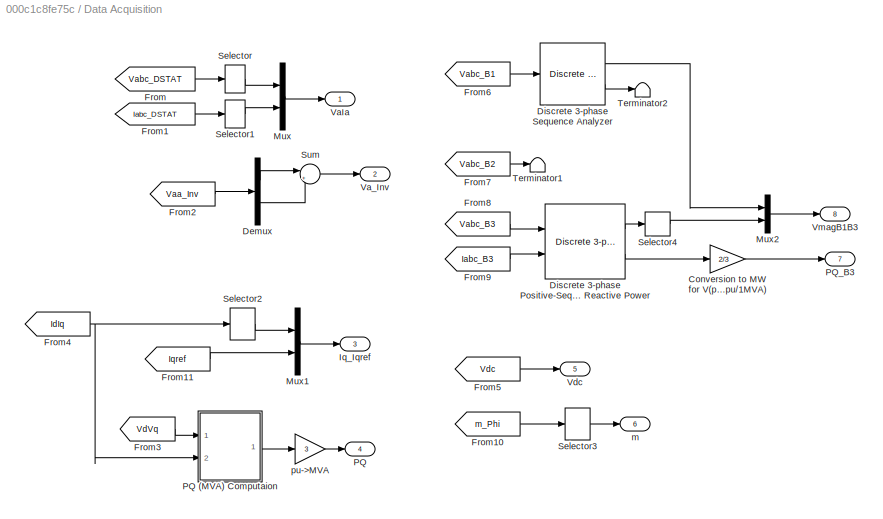
BLOCK [SubSystem] Data Acquisition
  FunctionWithSeparateData = off
  MaskHideContents = off
  MinAlgLoopOccurrences = off
  Opaque = off
  Ports = [0, 8]
  PropExecContextOutsideSubsystem = off
  RTWSystemCode = Auto
  RequestExecContextInheritance = off
BLOCK [Gain] Data Acquisition/Conversion to MW for V(pu), I (pu//1MVA)
  Gain = 2/3
BLOCK [Demux] Data Acquisition/Demux
  Outputs = 2
  Ports = [1, 2]
BLOCK [Reference] Data Acquisition/Discrete 3-phase Positive-Sequence Active & Reactive Power  REF=powerlib_extras/Discrete
Measurements/Discrete 3-phase 
Positive-Sequence 
Active & Reactive Power
  Freq = 60
  Par_Iinit = [0 0]
  Par_Vinit = [1 0]
  Ports = [2, 2]
  SourceBlock = powerlib_extras/Discrete\nMeasurements/Discrete 3-phase \nPositive-Sequence \nActive & Reactive Power
  SourceType = Discrete 3-phase Positive-Sequence Active & Reactive Power
  Ts = Ts
BLOCK [Reference] Data Acquisition/Discrete 3-phase Sequence Analyzer  REF=powerlib_extras/Discrete
Measurements/Discrete 3-phase
Sequence Analyzer
  Freq = 60
  Par_Init = [1 0]
  Ports = [1, 2]
  SourceBlock = powerlib_extras/Discrete\nMeasurements/Discrete 3-phase\nSequence Analyzer
  SourceType = Discrete 3-Phase Sequence Analyzer
  Ts = Ts
  n = 1
  seq = Positive
BLOCK [From] Data Acquisition/From
  CloseFcn = tagdialog Close
  GotoTag = Vabc_DSTAT
  TagVisibility = global
BLOCK [From] Data Acquisition/From1
  CloseFcn = tagdialog Close
  GotoTag = Iabc_DSTAT
  TagVisibility = global
BLOCK [From] Data Acquisition/From10
  CloseFcn = tagdialog Close
  GotoTag = m_Phi
  TagVisibility = global
BLOCK [From] Data Acquisition/From11
  CloseFcn = tagdialog Close
  GotoTag = Iqref
  TagVisibility = global
BLOCK [From] Data Acquisition/From2
  CloseFcn = tagdialog Close
  GotoTag = Vaa_Inv
  TagVisibility = global
BLOCK [From] Data Acquisition/From3
  CloseFcn = tagdialog Close
  GotoTag = VdVq
  TagVisibility = global
BLOCK [From] Data Acquisition/From4
  CloseFcn = tagdialog Close
  GotoTag = IdIq
  TagVisibility = global
BLOCK [From] Data Acquisition/From5
  CloseFcn = tagdialog Close
  GotoTag = Vdc
  TagVisibility = global
BLOCK [From] Data Acquisition/From6
  CloseFcn = tagdialog Close
  GotoTag = Vabc_B1
  TagVisibility = global
BLOCK [From] Data Acquisition/From7
  CloseFcn = tagdialog Close
  GotoTag = Vabc_B2
  TagVisibility = global
BLOCK [From] Data Acquisition/From8
  CloseFcn = tagdialog Close
  GotoTag = Vabc_B3
  TagVisibility = global
BLOCK [From] Data Acquisition/From9
  CloseFcn = tagdialog Close
  GotoTag = Iabc_B3
  TagVisibility = global
BLOCK [Outport] Data Acquisition/Iq_Iqref
  IconDisplay = Port number
  Port = 3
BLOCK [Mux] Data Acquisition/Mux
  DisplayOption = bar
  Inputs = 2
  Ports = [2, 1]
BLOCK [Mux] Data Acquisition/Mux1
  DisplayOption = bar
  Inputs = 2
  Ports = [2, 1]
BLOCK [Mux] Data Acquisition/Mux2
  DisplayOption = bar
  Inputs = 2
  Ports = [2, 1]
BLOCK [Outport] Data Acquisition/PQ
  IconDisplay = Port number
  Port = 4
BLOCK [SubSystem] Data Acquisition/PQ (MVA) Computaion
  FunctionWithSeparateData = off
  MaskHideContents = off
  MinAlgLoopOccurrences = off
  Opaque = off
  Ports = [2, 1]
  PropExecContextOutsideSubsystem = off
  RTWSystemCode = Auto
  RequestExecContextInheritance = off
BLOCK [Demux] Data Acquisition/PQ (MVA) Computaion/Demux1
  Outputs = 2
  Ports = [1, 2]
BLOCK [Demux] Data Acquisition/PQ (MVA) Computaion/Demux2
  Outputs = 2
  Ports = [1, 2]
BLOCK [Inport] Data Acquisition/PQ (MVA) Computaion/Id_Iq
  IconDisplay = Port number
  Port = 2
  PortDimensions = 2
BLOCK [Mux] Data Acquisition/PQ (MVA) Computaion/Mux2
  DisplayOption = bar
  Inputs = 2
  Ports = [2, 1]
BLOCK [Outport] Data Acquisition/PQ (MVA) Computaion/PQ
  IconDisplay = Port number
BLOCK [Product] Data Acquisition/PQ (MVA) Computaion/Product2
  Ports = [2, 1]
  RndMeth = Floor
BLOCK [Product] Data Acquisition/PQ (MVA) Computaion/Product3
  Ports = [2, 1]
  RndMeth = Floor
BLOCK [Product] Data Acquisition/PQ (MVA) Computaion/Product4
  Ports = [2, 1]
  RndMeth = Floor
BLOCK [Product] Data Acquisition/PQ (MVA) Computaion/Product5
  Ports = [2, 1]
  RndMeth = Floor
BLOCK [Sum] Data Acquisition/PQ (MVA) Computaion/Sum
  Ports = [2, 1]
BLOCK [Sum] Data Acquisition/PQ (MVA) Computaion/Sum1
  Inputs = +-
  Ports = [2, 1]
BLOCK [Inport] Data Acquisition/PQ (MVA) Computaion/Vd_Vq
  IconDisplay = Port number
  PortDimensions = 2
BLOCK [Outport] Data Acquisition/PQ_B3
  IconDisplay = Port number
  Port = 7
BLOCK [Selector] Data Acquisition/Selector
  IndexOptions = Index vector (dialog)
  Indices = 1
  InputPortWidth = 3
  OutputSizes = 1
  Ports = [1, 1]
BLOCK [Selector] Data Acquisition/Selector1
  IndexOptions = Index vector (dialog)
  Indices = 1
  InputPortWidth = 3
  OutputSizes = 1
  Ports = [1, 1]
BLOCK [Selector] Data Acquisition/Selector2
  IndexOptions = Index vector (dialog)
  Indices = 2
  InputPortWidth = 2
  OutputSizes = 1
  Ports = [1, 1]
BLOCK [Selector] Data Acquisition/Selector3
  IndexOptions = Index vector (dialog)
  Indices = 1
  InputPortWidth = 2
  OutputSizes = 1
  Ports = [1, 1]
BLOCK [Selector] Data Acquisition/Selector4
  IndexOptions = Index vector (dialog)
  Indices = 1
  InputPortWidth = 2
  OutputSizes = 1
  Ports = [1, 1]
BLOCK [Sum] Data Acquisition/Sum
  IconShape = round
  InputSameDT = off
  Inputs = |+-
  OutDataTypeStr = Inherit: Inherit via internal rule
  Ports = [2, 1]
BLOCK [Terminator] Data Acquisition/Terminator1
BLOCK [Terminator] Data Acquisition/Terminator2
BLOCK [Outport] Data Acquisition/VaIa
  IconDisplay = Port number
BLOCK [Outport] Data Acquisition/Va_Inv
  IconDisplay = Port number
  Port = 2
BLOCK [Outport] Data Acquisition/Vdc
  IconDisplay = Port number
  Port = 5
BLOCK [Outport] Data Acquisition/VmagB1B3
  IconDisplay = Port number
  Port = 8
BLOCK [Outport] Data Acquisition/m
  IconDisplay = Port number
  Port = 6
BLOCK [Gain] Data Acquisition/pu->MVA
  Gain = 3
BLOCK [SubSystem] Double click here for more info
  FunctionWithSeparateData = off
  MaskHideContents = off
  MinAlgLoopOccurrences = off
  Opaque = off
  OpenFcn = showdemo(bdroot(gcb))
  Ports = []
  PropExecContextOutsideSubsystem = off
  RTWSystemCode = Auto
  RequestExecContextInheritance = off
BLOCK [Reference] Ground1  REF=powerlib/Elements/Ground
  AttributesFormatString = \n
  LConnTagsString = a
  Ports = [0, 0, 0, 0, 0, 1]
  SourceBlock = powerlib/Elements/Ground
  SourceType = Ground
BLOCK [Reference] Ground2  REF=powerlib/Elements/Ground
  AttributesFormatString = \n
  LConnTagsString = a
  Ports = [0, 0, 0, 0, 0, 1]
  SourceBlock = powerlib/Elements/Ground
  SourceType = Ground
BLOCK [Reference] Programmable Voltage Source  REF=powerlib/Electrical
Sources/Three-Phase
Programmable
Voltage Source
  Amplitudes = [1 1.06 0.94 1.0]
  BusType = swing
  HarmonicA = [3 0.2 -25 0]
  HarmonicB = [2 0.15 35 2]
  HarmonicGeneration = off
  Ports = [0, 0, 0, 0, 0, 1, 3]
  PositiveSequence = [1.077*25e3 19 60]
  Pref = 0
  Qmax = inf
  Qmin = -inf
  Qref = 0
  SourceBlock = powerlib/Electrical\nSources/Three-Phase\nProgrammable\nVoltage Source
  SourceType = Three-Phase Programmable Voltage Source
  TimeValues = [0 0.2  0.3   0.4 ]
  Timing = [0.05  3]
  VariationEntity = None
  VariationFrequency = 2
  VariationMagnitude = 0.3
  VariationPhaseA = off
  VariationRate = 10
  VariationStep = 0.5
  VariationTiming = [1 2]
  VariationType = Table of time-amplitude pairs
  VariationTypeAlt = Step
BLOCK [Scope] Scope1
  DataFormat = StructureWithTime
  Floating = off
  LimitDataPoints = off
  NumInputPorts = 2
  Ports = [2]
  SampleInput = on
  SampleTime = Ts
  SaveName = Sig1
  ShowLegends = off
  TimeRange = 0.5
  YMax = 1.5~4000
  YMin = -1.5~-4000
  ZoomMode = yonly
BLOCK [Scope] Scope2
  DataFormat = StructureWithTime
  Floating = off
  LimitDataPoints = off
  NumInputPorts = 4
  Ports = [4]
  SampleInput = on
  SampleTime = Ts*32
  SaveName = Sig2
  ShowLegends = off
  TimeRange = 0.5
  YMax = 1.5~4~2600~1.2
  YMin = -1.5~-4~2200~0.4
  ZoomMode = yonly
BLOCK [Scope] Scope3
  DataFormat = StructureWithTime
  Floating = off
  LimitDataPoints = off
  NumInputPorts = 3
  Ports = [3]
  SampleInput = on
  SampleTime = Ts
  SaveName = Sig
  ShowLegends = off
  TimeRange = 0.5
  YMax = 6~1.15~1
  YMin = 0~0.9500000000000001~-1
  ZoomMode = yonly
BLOCK [Selector] Selector
  IndexOptions = Index vector (dialog)
  Indices = 2
  InputPortWidth = 2
  OutputSizes = 1
  Ports = [1, 1]
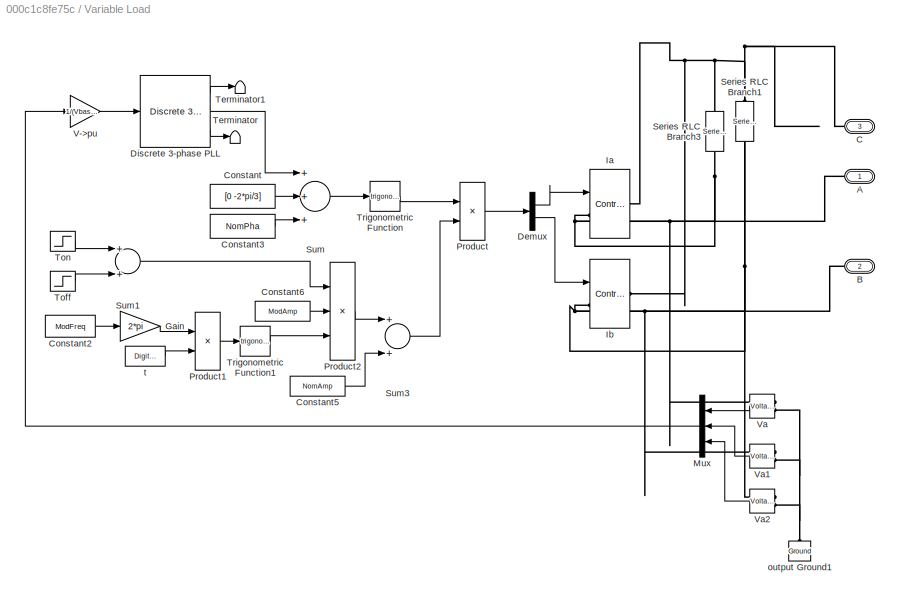
BLOCK [SubSystem] Variable Load
  FunctionWithSeparateData = off
  MaskHideContents = off
  MinAlgLoopOccurrences = off
  Opaque = off
  Ports = [0, 0, 0, 0, 0, 3]
  PropExecContextOutsideSubsystem = off
  RTWSystemCode = Auto
  RequestExecContextInheritance = off
BLOCK [PMIOPort] Variable Load/A
  Port = 1
  Side = Left
BLOCK [PMIOPort] Variable Load/B
  Port = 2
  Side = Left
BLOCK [PMIOPort] Variable Load/C
  Port = 3
  Side = Left
BLOCK [Constant] Variable Load/Constant
  Value = [0 -2*pi/3]
BLOCK [Constant] Variable Load/Constant2
  Value = ModFreq
BLOCK [Constant] Variable Load/Constant3
  Value = NomPha
BLOCK [Constant] Variable Load/Constant5
  Value = NomAmp
BLOCK [Constant] Variable Load/Constant6
  Value = ModAmp
BLOCK [Demux] Variable Load/Demux
  Outputs = 2
  Ports = [1, 2]
BLOCK [Reference] Variable Load/Discrete 3-phase PLL  REF=powerlib_extras/Discrete 
Control Blocks/Discrete
3-phase PLL
  AGC = off
  Fmin = 45
  ParK = [60 1400]
  Par_Init = [0 60]
  Ports = [1, 3]
  SourceBlock = powerlib_extras/Discrete \nControl Blocks/Discrete\n3-phase PLL
  SourceType = Discrete 3-phase PLL
  Ts = Ts
BLOCK [Gain] Variable Load/Gain
  Gain = 2*pi
BLOCK [Reference] Variable Load/Ia  REF=powerlib/Electrical
Sources/Controlled Current Source
  Amplitude = 0
  AttributesFormatString = \n
  Description = source block
  Frequency = 0
  Initialize = on
  Measurements = None
  Phase = 0
  Ports = [1, 0, 0, 0, 0, 1, 1]
  SourceBlock = powerlib/Electrical\nSources/Controlled Current Source
  SourceType = Controlled Current Source
  Source_Type = AC
BLOCK [Reference] Variable Load/Ib  REF=powerlib/Electrical
Sources/Controlled Current Source
  Amplitude = 0
  AttributesFormatString = \n
  Description = source block
  Frequency = 0
  Initialize = on
  Measurements = None
  Phase = 0
  Ports = [1, 0, 0, 0, 0, 1, 1]
  SourceBlock = powerlib/Electrical\nSources/Controlled Current Source
  SourceType = Controlled Current Source
  Source_Type = AC
BLOCK [Mux] Variable Load/Mux
  DisplayOption = bar
  Inputs = 3
  Ports = [3, 1]
BLOCK [Product] Variable Load/Product
  Ports = [2, 1]
  RndMeth = Floor
BLOCK [Product] Variable Load/Product1
  Ports = [2, 1]
  RndMeth = Floor
BLOCK [Product] Variable Load/Product2
  Inputs = 3
  Ports = [3, 1]
  RndMeth = Floor
BLOCK [Reference] Variable Load/Series RLC Branch1  REF=powerlib/Elements/Series RLC Branch
  AttributesFormatString = \n
  BranchType = R
  Capacitance = 1.0
  Inductance = 1.0
  InitialCurrent = 0
  InitialVoltage = 0
  LConnTagsString = __new0
  Measurements = None
  Ports = [0, 0, 0, 0, 0, 1, 1]
  RConnTagsString = __new0
  Resistance = 1e6
  SetiL0 = off
  Setx0 = off
  SourceBlock = powerlib/Elements/Series RLC Branch
  SourceType = Series RLC Branch
BLOCK [Reference] Variable Load/Series RLC Branch3  REF=powerlib/Elements/Series RLC Branch
  AttributesFormatString = \n
  BranchType = R
  Capacitance = 1.0
  Inductance = 1.0
  InitialCurrent = 0
  InitialVoltage = 0
  LConnTagsString = __new0
  Measurements = None
  Ports = [0, 0, 0, 0, 0, 1, 1]
  RConnTagsString = __new0
  Resistance = 1e6
  SetiL0 = off
  Setx0 = off
  SourceBlock = powerlib/Elements/Series RLC Branch
  SourceType = Series RLC Branch
BLOCK [Sum] Variable Load/Sum
  Inputs = +++
  Ports = [3, 1]
BLOCK [Sum] Variable Load/Sum1
  Ports = [2, 1]
BLOCK [Sum] Variable Load/Sum3
  Ports = [2, 1]
BLOCK [Terminator] Variable Load/Terminator
BLOCK [Terminator] Variable Load/Terminator1
BLOCK [Step] Variable Load/Toff
  After = -1
  SampleTime = Ts
  Time = Toff
BLOCK [Step] Variable Load/Ton
  SampleTime = Ts
  Time = Ton
BLOCK [Trigonometry] Variable Load/Trigonometric Function
  Ports = [1, 1]
BLOCK [Trigonometry] Variable Load/Trigonometric Function1
  Ports = [1, 1]
BLOCK [Gain] Variable Load/V->pu
  Gain = 1/(Vbase*sqrt(2)/sqrt(3))
BLOCK [Reference] Variable Load/Va  REF=powerlib/Measurements/Voltage Measurement
  AttributesFormatString = \n
  OutputType = Magnitude
  PSBequivalent = 0
  PhasorSimulation = off
  Ports = [0, 1, 0, 0, 0, 2]
  SourceBlock = powerlib/Measurements/Voltage Measurement
  SourceType = Voltage Measurement
  Tag = PoWeRsYsTeMmEaSuReMeNt
BLOCK [Reference] Variable Load/Va1  REF=powerlib/Measurements/Voltage Measurement
  AttributesFormatString = \n
  OutputType = Magnitude
  PSBequivalent = 0
  PhasorSimulation = off
  Ports = [0, 1, 0, 0, 0, 2]
  SourceBlock = powerlib/Measurements/Voltage Measurement
  SourceType = Voltage Measurement
  Tag = PoWeRsYsTeMmEaSuReMeNt
BLOCK [Reference] Variable Load/Va2  REF=powerlib/Measurements/Voltage Measurement
  AttributesFormatString = \n
  OutputType = Magnitude
  PSBequivalent = 0
  PhasorSimulation = off
  Ports = [0, 1, 0, 0, 0, 2]
  SourceBlock = powerlib/Measurements/Voltage Measurement
  SourceType = Voltage Measurement
  Tag = PoWeRsYsTeMmEaSuReMeNt
BLOCK [Reference] Variable Load/output Ground1  REF=powerlib/Elements/Ground
  AttributesFormatString = \n
  LConnTagsString = a
  Ports = [0, 0, 0, 0, 0, 1, 1]
  RConnTagsString = __newr0
  SourceBlock = powerlib/Elements/Ground
  SourceType = Ground
BLOCK [DigitalClock] Variable Load/t
  SampleTime = Ts
BLOCK [Reference] powergui  REF=powerlib/powergui
  DisableRonSwitches = off
  DisableSnubberDevices = off
  DisableVfSwitches = off
  DisplayEquations = off
  DisplayStyle = 1
  EnableUseOfTLC = off
  ErrMax = 1e-4
  Frange = [0:2:500]
  FreqAxis = off
  FunctionMessages = off
  HookPort = off
  Interpol = off
  Iterations = 50
  MaxFrequency = 5000
  Pbase = 100e6
  Ports = []
  Priority = 2
  ResistiveCurrentMeasurement = off
  RestoreLinks = warning
  RmsSteady = 1
  SPID = off
  SampleTime = Ts
  ShowGrid = off
  SolverType = Tustin
  SourceBlock = powerlib/powergui
  SourceType = PSB option menu block
  StartTime = 0.26
  SwTol = 0
  Ts = 0
  UnitsV = kV
  UnitsW = MW
  UserDataPersistent = on
  Xlog = on
  Ylog = off
  ZoomFFT = on
  cycles = 2
  display = off
  echomessages = off
  frequency = 60
  frequencyindice = 60
  frequencyindicesteady = 1
  fundamental = 60
  methode = off
  save = off
  structure = Sig1
  variable = ZData
  x0status = blocks
ANNOTATION (root): 25-kV, +3/-3 Mvar Distribution STATCOM (Detailed Model)
ANNOTATION (root): The 'InitFcn' automatically sets the sample time Ts= 5e-6 s
ANNOTATION DStatcom: +
ANNOTATION DStatcom: -
ANNOTATION DStatcom: D-STATCOM 25kV, +/- 3Mvar
ANNOTATION DStatcom/Controller/Controller (sample time=Ts*32): D-STATCOM Controller
ANNOTATION DStatcom/Controller/Controller (sample time=Ts*32): Giroux P., Sybille G. Power System Simulation Laboratory, IREQ Hydro-Quebec
ANNOTATION DStatcom/Controller/Controller (sample time=Ts*32): Id positive(+) flowing into converter ==> Converter absorbing real power = P positive(+)
ANNOTATION DStatcom/Controller/Controller (sample time=Ts*32): Iq negative(-) flowing into converter (inductive current) ==> Converter absorbing reactive power = Q positive(+)
ANNOTATION DStatcom/Controller/Controller (sample time=Ts*32): Sample Time = 32*Ts
ANNOTATION DStatcom/Controller/Controller (sample time=Ts*32): Sign convention:
ANNOTATION DStatcom/Controller/Controller (sample time=Ts*32)/Current Regulator: =================
ANNOTATION DStatcom/Controller/Controller (sample time=Ts*32)/Current Regulator: Current Regulators
ANNOTATION DStatcom/Controller/Controller (sample time=Ts*32)/Discrete 3-phase PLL: Discrete 3-phase PLL
ANNOTATION DStatcom/Controller/Controller (sample time=Ts*32)/Discrete 3-phase PLL: Pierre Giroux, Gilbert Sybille Power System Laboratory, IREQ Hydro-Quebec
ANNOTATION DStatcom/Controller/PWM Modulator : (Bridge 1)
ANNOTATION DStatcom/Controller/PWM Modulator : (Bridge 2)
ANNOTATION DStatcom/Controller/PWM Modulator : 2- or 3-level, 3-phase (single and twin configuration) PWM Modulator
ANNOTATION DStatcom/Controller/PWM Modulator : P.Dahler ABB Industrie AG
ANNOTATION DStatcom/Controller/PWM Modulator : Pierre Giroux, Gilbert Sybille Power System Laboratory, IREQ Hydro-Quebec
ANNOTATION DStatcom/Controller/PWM Modulator /3-level Type/State-to-Pulses Decoder: + Vdc --------------------------
ANNOTATION DStatcom/Controller/PWM Modulator /3-level Type/State-to-Pulses Decoder: - Vdc--------------------------
ANNOTATION DStatcom/Controller/PWM Modulator /3-level Type/State-to-Pulses Decoder: ---------- A
ANNOTATION DStatcom/Controller/PWM Modulator /3-level Type/State-to-Pulses Decoder: --------------------------------------------------------------
ANNOTATION DStatcom/Controller/PWM Modulator /3-level Type/State-to-Pulses Decoder: ----------[D]---------
ANNOTATION DStatcom/Controller/PWM Modulator /3-level Type/State-to-Pulses Decoder: -1
ANNOTATION DStatcom/Controller/PWM Modulator /3-level Type/State-to-Pulses Decoder: 0
ANNOTATION DStatcom/Controller/PWM Modulator /3-level Type/State-to-Pulses Decoder: 1
ANNOTATION DStatcom/Controller/PWM Modulator /3-level Type/State-to-Pulses Decoder: 3-phase State-to-Pulses Decoder
ANNOTATION DStatcom/Controller/PWM Modulator /3-level Type/State-to-Pulses Decoder: Firing pulses
ANNOTATION DStatcom/Controller/PWM Modulator /3-level Type/State-to-Pulses Decoder: N -----------
ANNOTATION DStatcom/Controller/PWM Modulator /3-level Type/State-to-Pulses Decoder: Phase A: 1 to 4
ANNOTATION DStatcom/Controller/PWM Modulator /3-level Type/State-to-Pulses Decoder: Phase B: 5 to 8
ANNOTATION DStatcom/Controller/PWM Modulator /3-level Type/State-to-Pulses Decoder: Phase C: 9 to 12
ANNOTATION DStatcom/Controller/PWM Modulator /3-level Type/State-to-Pulses Decoder: Q1
ANNOTATION DStatcom/Controller/PWM Modulator /3-level Type/State-to-Pulses Decoder: Q2
ANNOTATION DStatcom/Controller/PWM Modulator /3-level Type/State-to-Pulses Decoder: Q3
ANNOTATION DStatcom/Controller/PWM Modulator /3-level Type/State-to-Pulses Decoder: Q4
ANNOTATION DStatcom/Controller/PWM Modulator /3-level Type/State-to-Pulses Decoder: State
ANNOTATION DStatcom/Controller/PWM Modulator /3-level Type/State-to-Pulses Decoder: | | [Q2] | |
ANNOTATION DStatcom/Controller/PWM Modulator /3-level Type/State-to-Pulses Decoder: | | [Q3] | |
ANNOTATION DStatcom/Controller/PWM Modulator /3-level Type/State-to-Pulses Decoder: | | [Q4] | | |
ANNOTATION DStatcom/Controller/PWM Modulator /3-level Type/State-to-Pulses Decoder: | | | [Q1] | |
ANNOTATION DStatcom/Controller/PWM Modulator /3-level Type/State-to-Pulses Decoder: | | | | | | | | |
ANNOTATION DStatcom/Controller/PWM Modulator /3-level Type/State-to-Pulses Decoder: | | | | | | | | | | |
ANNOTATION DStatcom/Controller/PWM Modulator /3-level Type/State-to-Pulses Decoder1: + Vdc --------------------------
ANNOTATION DStatcom/Controller/PWM Modulator /3-level Type/State-to-Pulses Decoder1: - Vdc--------------------------
ANNOTATION DStatcom/Controller/PWM Modulator /3-level Type/State-to-Pulses Decoder1: ---------- A
ANNOTATION DStatcom/Controller/PWM Modulator /3-level Type/State-to-Pulses Decoder1: --------------------------------------------------------------
ANNOTATION DStatcom/Controller/PWM Modulator /3-level Type/State-to-Pulses Decoder1: ----------[D]---------
ANNOTATION DStatcom/Controller/PWM Modulator /3-level Type/State-to-Pulses Decoder1: -1
ANNOTATION DStatcom/Controller/PWM Modulator /3-level Type/State-to-Pulses Decoder1: 0
ANNOTATION DStatcom/Controller/PWM Modulator /3-level Type/State-to-Pulses Decoder1: 1
ANNOTATION DStatcom/Controller/PWM Modulator /3-level Type/State-to-Pulses Decoder1: 3-phase State-to-Pulses Decoder
ANNOTATION DStatcom/Controller/PWM Modulator /3-level Type/State-to-Pulses Decoder1: Firing pulses
ANNOTATION DStatcom/Controller/PWM Modulator /3-level Type/State-to-Pulses Decoder1: N -----------
ANNOTATION DStatcom/Controller/PWM Modulator /3-level Type/State-to-Pulses Decoder1: Phase A: 1 to 4
ANNOTATION DStatcom/Controller/PWM Modulator /3-level Type/State-to-Pulses Decoder1: Phase B: 5 to 8
ANNOTATION DStatcom/Controller/PWM Modulator /3-level Type/State-to-Pulses Decoder1: Phase C: 9 to 12
ANNOTATION DStatcom/Controller/PWM Modulator /3-level Type/State-to-Pulses Decoder1: Q1
ANNOTATION DStatcom/Controller/PWM Modulator /3-level Type/State-to-Pulses Decoder1: Q2
ANNOTATION DStatcom/Controller/PWM Modulator /3-level Type/State-to-Pulses Decoder1: Q3
ANNOTATION DStatcom/Controller/PWM Modulator /3-level Type/State-to-Pulses Decoder1: Q4
ANNOTATION DStatcom/Controller/PWM Modulator /3-level Type/State-to-Pulses Decoder1: State
ANNOTATION DStatcom/Controller/PWM Modulator /3-level Type/State-to-Pulses Decoder1: | | [Q2] | |
ANNOTATION DStatcom/Controller/PWM Modulator /3-level Type/State-to-Pulses Decoder1: | | [Q3] | |
ANNOTATION DStatcom/Controller/PWM Modulator /3-level Type/State-to-Pulses Decoder1: | | [Q4] | | |
ANNOTATION DStatcom/Controller/PWM Modulator /3-level Type/State-to-Pulses Decoder1: | | | [Q1] | |
ANNOTATION DStatcom/Controller/PWM Modulator /3-level Type/State-to-Pulses Decoder1: | | | | | | | | |
ANNOTATION DStatcom/Controller/PWM Modulator /3-level Type/State-to-Pulses Decoder1: | | | | | | | | | | |
ANNOTATION DStatcom/Controller/PWM Modulator /SubSystem: (or B or C)
ANNOTATION DStatcom/Controller/PWM Modulator /SubSystem: + Vdc --------------------------
ANNOTATION DStatcom/Controller/PWM Modulator /SubSystem: - Vdc--------------------------
ANNOTATION DStatcom/Controller/PWM Modulator /SubSystem: ---------- A
ANNOTATION DStatcom/Controller/PWM Modulator /SubSystem: ------------ A
ANNOTATION DStatcom/Controller/PWM Modulator /SubSystem: ----------[D]---------
ANNOTATION DStatcom/Controller/PWM Modulator /SubSystem: 0 -------------------------
ANNOTATION DStatcom/Controller/PWM Modulator /SubSystem: 10: Q2 (phase C)
ANNOTATION DStatcom/Controller/PWM Modulator /SubSystem: 11: Q3 (phase C)
ANNOTATION DStatcom/Controller/PWM Modulator /SubSystem: 12: Q4 (phase C)
ANNOTATION DStatcom/Controller/PWM Modulator /SubSystem: 1: Q1 (phase A )
ANNOTATION DStatcom/Controller/PWM Modulator /SubSystem: 2-level
ANNOTATION DStatcom/Controller/PWM Modulator /SubSystem: 2: Q2 (phase A)
ANNOTATION DStatcom/Controller/PWM Modulator /SubSystem: 3-level
ANNOTATION DStatcom/Controller/PWM Modulator /SubSystem: 3: Q1 (phase B)
ANNOTATION DStatcom/Controller/PWM Modulator /SubSystem: 3: Q3 (phase A)
ANNOTATION DStatcom/Controller/PWM Modulator /SubSystem: 4: Q2 (phase B)
ANNOTATION DStatcom/Controller/PWM Modulator /SubSystem: 4: Q4 (phase A)
ANNOTATION DStatcom/Controller/PWM Modulator /SubSystem: 5: Q1 (phase B )
ANNOTATION DStatcom/Controller/PWM Modulator /SubSystem: 5: Q1 (phase C)
ANNOTATION DStatcom/Controller/PWM Modulator /SubSystem: 6: Q2 (phase B)
ANNOTATION DStatcom/Controller/PWM Modulator /SubSystem: 6: Q2 (phase C)
ANNOTATION DStatcom/Controller/PWM Modulator /SubSystem: 7: Q3 (phase B)
ANNOTATION DStatcom/Controller/PWM Modulator /SubSystem: 8: Q4 (phase B)
ANNOTATION DStatcom/Controller/PWM Modulator /SubSystem: 9: Q1 (phase C )
ANNOTATION DStatcom/Controller/PWM Modulator /SubSystem: Bridge 1
ANNOTATION DStatcom/Controller/PWM Modulator /SubSystem: Bridge 2
ANNOTATION DStatcom/Controller/PWM Modulator /SubSystem: N -----------
ANNOTATION DStatcom/Controller/PWM Modulator /SubSystem: Pulse pattern identical to Bridge 1
ANNOTATION DStatcom/Controller/PWM Modulator /SubSystem: Pulses P1 -->
ANNOTATION DStatcom/Controller/PWM Modulator /SubSystem: Pulses P2 -->
ANNOTATION DStatcom/Controller/PWM Modulator /SubSystem: Vdc --------------------
ANNOTATION DStatcom/Controller/PWM Modulator /SubSystem: | | [Q2] | |
ANNOTATION DStatcom/Controller/PWM Modulator /SubSystem: | | [Q3] | |
ANNOTATION DStatcom/Controller/PWM Modulator /SubSystem: | | [Q4] | | |
ANNOTATION DStatcom/Controller/PWM Modulator /SubSystem: | | | [Q1] | |
ANNOTATION DStatcom/Controller/PWM Modulator /SubSystem: | | | | | [Q1] | | | |
ANNOTATION DStatcom/Controller/PWM Modulator /SubSystem: | | | | | [Q2] | | | |
ANNOTATION DStatcom/Controller/PWM Modulator /SubSystem: | | | | | | | | | | |
ANNOTATION DStatcom/Controller/PWM Modulator /SubSystem: | | | | | | | | | | | | | | | | | | | | | | | | | | | |
ANNOTATION Data Acquisition/PQ (MVA) Computaion: P = Vd*Id + Vq*Iq
ANNOTATION Data Acquisition/PQ (MVA) Computaion: PQ Measurement:
ANNOTATION Data Acquisition/PQ (MVA) Computaion: Q = Vq*Id-Vd*Iq
LINE DStatcom/Controller/Anti-aliasing Filters (7)/2nd-Order Filter1:1 -> DStatcom/Controller/Anti-aliasing Filters (7)/Mux:2
LINE DStatcom/Controller/Anti-aliasing Filters (7)/2nd-Order Filter2:1 -> DStatcom/Controller/Anti-aliasing Filters (7)/Mux:3
LINE DStatcom/Controller/Anti-aliasing Filters (7)/2nd-Order Filter3:1 -> DStatcom/Controller/Anti-aliasing Filters (7)/Mux1:1
LINE DStatcom/Controller/Anti-aliasing Filters (7)/2nd-Order Filter4:1 -> DStatcom/Controller/Anti-aliasing Filters (7)/Mux1:2
LINE DStatcom/Controller/Anti-aliasing Filters (7)/2nd-Order Filter5:1 -> DStatcom/Controller/Anti-aliasing Filters (7)/Mux1:3
LINE DStatcom/Controller/Anti-aliasing Filters (7)/2nd-Order Filter6:1 -> DStatcom/Controller/Anti-aliasing Filters (7)/ Vdc:1
LINE DStatcom/Controller/Anti-aliasing Filters (7)/2nd-Order Filter:1 -> DStatcom/Controller/Anti-aliasing Filters (7)/Mux:1
LINE DStatcom/Controller/Anti-aliasing Filters (7)/Demux1:1 -> DStatcom/Controller/Anti-aliasing Filters (7)/2nd-Order Filter3:1
LINE DStatcom/Controller/Anti-aliasing Filters (7)/Demux1:2 -> DStatcom/Controller/Anti-aliasing Filters (7)/2nd-Order Filter4:1
LINE DStatcom/Controller/Anti-aliasing Filters (7)/Demux1:3 -> DStatcom/Controller/Anti-aliasing Filters (7)/2nd-Order Filter5:1
LINE DStatcom/Controller/Anti-aliasing Filters (7)/Demux:1 -> DStatcom/Controller/Anti-aliasing Filters (7)/2nd-Order Filter:1
LINE DStatcom/Controller/Anti-aliasing Filters (7)/Demux:2 -> DStatcom/Controller/Anti-aliasing Filters (7)/2nd-Order Filter1:1
LINE DStatcom/Controller/Anti-aliasing Filters (7)/Demux:3 -> DStatcom/Controller/Anti-aliasing Filters (7)/2nd-Order Filter2:1
NET DStatcom/Controller/Anti-aliasing Filters (7)/Iabc :1 -> DStatcom/Controller/Anti-aliasing Filters (7)/Demux1:1, DStatcom/Controller/Anti-aliasing Filters (7)/Goto2:1
LINE DStatcom/Controller/Anti-aliasing Filters (7)/Mux1:1 -> DStatcom/Controller/Anti-aliasing Filters (7)/Iabc:1
LINE DStatcom/Controller/Anti-aliasing Filters (7)/Mux:1 -> DStatcom/Controller/Anti-aliasing Filters (7)/ Vabc:1
NET DStatcom/Controller/Anti-aliasing Filters (7)/Vabc:1 -> DStatcom/Controller/Anti-aliasing Filters (7)/Demux:1, DStatcom/Controller/Anti-aliasing Filters (7)/Goto1:1
NET DStatcom/Controller/Anti-aliasing Filters (7)/Vdc :1 -> DStatcom/Controller/Anti-aliasing Filters (7)/2nd-Order Filter6:1, DStatcom/Controller/Anti-aliasing Filters (7)/Goto3:1
LINE DStatcom/Controller/Anti-aliasing Filters (7):1 -> DStatcom/Controller/Zero-Order Hold2:1
LINE DStatcom/Controller/Anti-aliasing Filters (7):2 -> DStatcom/Controller/Zero-Order Hold1:1
LINE DStatcom/Controller/Anti-aliasing Filters (7):3 -> DStatcom/Controller/Zero-Order Hold3:1
LINE DStatcom/Controller/Controller (sample time=Ts*32)/AC Voltage Regulator/Discrete PI Controller:1 -> DStatcom/Controller/Controller (sample time=Ts*32)/AC Voltage Regulator/Iq_Ref:1
LINE DStatcom/Controller/Controller (sample time=Ts*32)/AC Voltage Regulator/Mag_V:1 -> DStatcom/Controller/Controller (sample time=Ts*32)/AC Voltage Regulator/Sum:2
LINE DStatcom/Controller/Controller (sample time=Ts*32)/AC Voltage Regulator/Sum:1 -> DStatcom/Controller/Controller (sample time=Ts*32)/AC Voltage Regulator/Discrete PI Controller:1
LINE DStatcom/Controller/Controller (sample time=Ts*32)/AC Voltage Regulator/Vac_Ref:1 -> DStatcom/Controller/Controller (sample time=Ts*32)/AC Voltage Regulator/Sum:1
LINE DStatcom/Controller/Controller (sample time=Ts*32)/AC Voltage Regulator:1 -> DStatcom/Controller/Controller (sample time=Ts*32)/Switch:1
LINE DStatcom/Controller/Controller (sample time=Ts*32)/Constant10:1 -> DStatcom/Controller/Controller (sample time=Ts*32)/Relational Operator1:1
LINE DStatcom/Controller/Controller (sample time=Ts*32)/Constant11:1 -> DStatcom/Controller/Controller (sample time=Ts*32)/Relational Operator1:2
LINE DStatcom/Controller/Controller (sample time=Ts*32)/Constant12:1 -> DStatcom/Controller/Controller (sample time=Ts*32)/Iq_ref (Manual):2
LINE DStatcom/Controller/Controller (sample time=Ts*32)/Constant6:1 -> DStatcom/Controller/Controller (sample time=Ts*32)/DC Voltage Regulator:2
LINE DStatcom/Controller/Controller (sample time=Ts*32)/Constant7:1 -> DStatcom/Controller/Controller (sample time=Ts*32)/AC Voltage Regulator:1
LINE DStatcom/Controller/Controller (sample time=Ts*32)/Current Regulator/Demux1:1 -> DStatcom/Controller/Controller (sample time=Ts*32)/Current Regulator/Sum:2
LINE DStatcom/Controller/Controller (sample time=Ts*32)/Current Regulator/Demux1:2 -> DStatcom/Controller/Controller (sample time=Ts*32)/Current Regulator/Sum1:2
LINE DStatcom/Controller/Controller (sample time=Ts*32)/Current Regulator/Demux:1 -> DStatcom/Controller/Controller (sample time=Ts*32)/Current Regulator/Sum:1
LINE DStatcom/Controller/Controller (sample time=Ts*32)/Current Regulator/Demux:2 -> DStatcom/Controller/Controller (sample time=Ts*32)/Current Regulator/Sum1:1
LINE DStatcom/Controller/Controller (sample time=Ts*32)/Current Regulator/Discrete Rate Limiter:1 -> DStatcom/Controller/Controller (sample time=Ts*32)/Current Regulator/Demux1:1
LINE DStatcom/Controller/Controller (sample time=Ts*32)/Current Regulator/Id PID1:1 -> DStatcom/Controller/Controller (sample time=Ts*32)/Current Regulator/Mux:2
LINE DStatcom/Controller/Controller (sample time=Ts*32)/Current Regulator/Id PID:1 -> DStatcom/Controller/Controller (sample time=Ts*32)/Current Regulator/Mux:1
LINE DStatcom/Controller/Controller (sample time=Ts*32)/Current Regulator/IdIq:1 -> DStatcom/Controller/Controller (sample time=Ts*32)/Current Regulator/Demux:1
LINE DStatcom/Controller/Controller (sample time=Ts*32)/Current Regulator/IdIq_Ref:1 -> DStatcom/Controller/Controller (sample time=Ts*32)/Current Regulator/Discrete Rate Limiter:1
LINE DStatcom/Controller/Controller (sample time=Ts*32)/Current Regulator/Mux:1 -> DStatcom/Controller/Controller (sample time=Ts*32)/Current Regulator/VdVq:1
LINE DStatcom/Controller/Controller (sample time=Ts*32)/Current Regulator/Sum1:1 -> DStatcom/Controller/Controller (sample time=Ts*32)/Current Regulator/Id PID1:1
LINE DStatcom/Controller/Controller (sample time=Ts*32)/Current Regulator/Sum:1 -> DStatcom/Controller/Controller (sample time=Ts*32)/Current Regulator/Id PID:1
LINE DStatcom/Controller/Controller (sample time=Ts*32)/Current Regulator:1 -> DStatcom/Controller/Controller (sample time=Ts*32)/Vd_Vq--> m,Phi:1
LINE DStatcom/Controller/Controller (sample time=Ts*32)/DC Voltage Regulator/-1<Id<+1:1 -> DStatcom/Controller/Controller (sample time=Ts*32)/DC Voltage Regulator/Id_Ref:1
LINE DStatcom/Controller/Controller (sample time=Ts*32)/DC Voltage Regulator/2250<Vdc<3750:1 -> DStatcom/Controller/Controller (sample time=Ts*32)/DC Voltage Regulator/Discrete Rate Limiter1:1
LINE DStatcom/Controller/Controller (sample time=Ts*32)/DC Voltage Regulator/Discrete PI Controller:1 -> DStatcom/Controller/Controller (sample time=Ts*32)/DC Voltage Regulator/-1<Id<+1:1
LINE DStatcom/Controller/Controller (sample time=Ts*32)/DC Voltage Regulator/Discrete Rate Limiter1:1 -> DStatcom/Controller/Controller (sample time=Ts*32)/DC Voltage Regulator/Sum:1
LINE DStatcom/Controller/Controller (sample time=Ts*32)/DC Voltage Regulator/Sum:1 -> DStatcom/Controller/Controller (sample time=Ts*32)/DC Voltage Regulator/Discrete PI Controller:1
LINE DStatcom/Controller/Controller (sample time=Ts*32)/DC Voltage Regulator/Vdc:1 -> DStatcom/Controller/Controller (sample time=Ts*32)/DC Voltage Regulator/Sum:2
LINE DStatcom/Controller/Controller (sample time=Ts*32)/DC Voltage Regulator/Vdc_Ref:1 -> DStatcom/Controller/Controller (sample time=Ts*32)/DC Voltage Regulator/2250<Vdc<3750:1
LINE DStatcom/Controller/Controller (sample time=Ts*32)/DC Voltage Regulator:1 -> DStatcom/Controller/Controller (sample time=Ts*32)/Mux3:1
LINE DStatcom/Controller/Controller (sample time=Ts*32)/Discrete 3-phase PLL/Constant4:1 -> DStatcom/Controller/Controller (sample time=Ts*32)/Discrete 3-phase PLL/Math Function:2
LINE DStatcom/Controller/Controller (sample time=Ts*32)/Discrete 3-phase PLL/Discrete 2nd-Order Filter:1 -> DStatcom/Controller/Controller (sample time=Ts*32)/Discrete 3-phase PLL/Unit Delay:1
NET DStatcom/Controller/Controller (sample time=Ts*32)/Discrete 3-phase PLL/Discrete PI Controller:1 -> DStatcom/Controller/Controller (sample time=Ts*32)/Discrete 3-phase PLL/Discrete-Time Integrator:1, DStatcom/Controller/Controller (sample time=Ts*32)/Discrete 3-phase PLL/Gain10:1, DStatcom/Controller/Controller (sample time=Ts*32)/Discrete 3-phase PLL/w:1
LINE DStatcom/Controller/Controller (sample time=Ts*32)/Discrete 3-phase PLL/Discrete Rate Limiter:1 -> DStatcom/Controller/Controller (sample time=Ts*32)/Discrete 3-phase PLL/Discrete 2nd-Order Filter:1
LINE DStatcom/Controller/Controller (sample time=Ts*32)/Discrete 3-phase PLL/Discrete Variable Frequency Mean value:1 -> DStatcom/Controller/Controller (sample time=Ts*32)/Discrete 3-phase PLL/Discrete PI Controller:1
LINE DStatcom/Controller/Controller (sample time=Ts*32)/Discrete 3-phase PLL/Discrete-Time Integrator:1 -> DStatcom/Controller/Controller (sample time=Ts*32)/Discrete 3-phase PLL/Math Function:1
LINE DStatcom/Controller/Controller (sample time=Ts*32)/Discrete 3-phase PLL/Gain10:1 -> DStatcom/Controller/Controller (sample time=Ts*32)/Discrete 3-phase PLL/Discrete Rate Limiter:1
NET DStatcom/Controller/Controller (sample time=Ts*32)/Discrete 3-phase PLL/Math Function:1 -> DStatcom/Controller/Controller (sample time=Ts*32)/Discrete 3-phase PLL/Trigonometric Function2:1, DStatcom/Controller/Controller (sample time=Ts*32)/Discrete 3-phase PLL/Trigonometric Function:1, DStatcom/Controller/Controller (sample time=Ts*32)/Discrete 3-phase PLL/wt:1
NET DStatcom/Controller/Controller (sample time=Ts*32)/Discrete 3-phase PLL/Mux2:1 -> DStatcom/Controller/Controller (sample time=Ts*32)/Discrete 3-phase PLL/Sin_Cos:1, DStatcom/Controller/Controller (sample time=Ts*32)/Discrete 3-phase PLL/abc_to_dq0 Transformation:2
LINE DStatcom/Controller/Controller (sample time=Ts*32)/Discrete 3-phase PLL/Selector:1 -> DStatcom/Controller/Controller (sample time=Ts*32)/Discrete 3-phase PLL/Discrete Variable Frequency Mean value:2
LINE DStatcom/Controller/Controller (sample time=Ts*32)/Discrete 3-phase PLL/Trigonometric Function2:1 -> DStatcom/Controller/Controller (sample time=Ts*32)/Discrete 3-phase PLL/Mux2:2
LINE DStatcom/Controller/Controller (sample time=Ts*32)/Discrete 3-phase PLL/Trigonometric Function:1 -> DStatcom/Controller/Controller (sample time=Ts*32)/Discrete 3-phase PLL/Mux2:1
NET DStatcom/Controller/Controller (sample time=Ts*32)/Discrete 3-phase PLL/Unit Delay:1 -> DStatcom/Controller/Controller (sample time=Ts*32)/Discrete 3-phase PLL/Discrete Variable Frequency Mean value:1, DStatcom/Controller/Controller (sample time=Ts*32)/Discrete 3-phase PLL/Freq:1
LINE DStatcom/Controller/Controller (sample time=Ts*32)/Discrete 3-phase PLL/Vabc (pu):1 -> DStatcom/Controller/Controller (sample time=Ts*32)/Discrete 3-phase PLL/abc_to_dq0 Transformation:1
LINE DStatcom/Controller/Controller (sample time=Ts*32)/Discrete 3-phase PLL/abc_to_dq0 Transformation:1 -> DStatcom/Controller/Controller (sample time=Ts*32)/Discrete 3-phase PLL/Selector:1
LINE DStatcom/Controller/Controller (sample time=Ts*32)/Discrete 3-phase PLL:1 -> DStatcom/Controller/Controller (sample time=Ts*32)/Terminator4:1
LINE DStatcom/Controller/Controller (sample time=Ts*32)/Discrete 3-phase PLL:2 -> DStatcom/Controller/Controller (sample time=Ts*32)/Terminator3:1
LINE DStatcom/Controller/Controller (sample time=Ts*32)/Discrete 3-phase PLL:3 -> DStatcom/Controller/Controller (sample time=Ts*32)/w:1
LINE DStatcom/Controller/Controller (sample time=Ts*32)/Discrete 3-phase PLL:4 -> DStatcom/Controller/Controller (sample time=Ts*32)/Measuremnt Unit:1
LINE DStatcom/Controller/Controller (sample time=Ts*32)/Iabc:1 -> DStatcom/Controller/Controller (sample time=Ts*32)/Measuremnt Unit:3
LINE DStatcom/Controller/Controller (sample time=Ts*32)/Iq_ref (Manual)/-1<Iq<+1:1 -> DStatcom/Controller/Controller (sample time=Ts*32)/Iq_ref (Manual)/Iqref*:1
LINE DStatcom/Controller/Controller (sample time=Ts*32)/Iq_ref (Manual)/Constant11:1 -> DStatcom/Controller/Controller (sample time=Ts*32)/Iq_ref (Manual)/Relational Operator1:2
LINE DStatcom/Controller/Controller (sample time=Ts*32)/Iq_ref (Manual)/Constant13:1 -> DStatcom/Controller/Controller (sample time=Ts*32)/Iq_ref (Manual)/Switch:3
LINE DStatcom/Controller/Controller (sample time=Ts*32)/Iq_ref (Manual)/Deg->Rad1:1 -> DStatcom/Controller/Controller (sample time=Ts*32)/Iq_ref (Manual)/-1<Iq<+1:1
LINE DStatcom/Controller/Controller (sample time=Ts*32)/Iq_ref (Manual)/Discrete 2nd-Order Filter:1 -> DStatcom/Controller/Controller (sample time=Ts*32)/Iq_ref (Manual)/Product:2
LINE DStatcom/Controller/Controller (sample time=Ts*32)/Iq_ref (Manual)/Discrete Rate Limiter:1 -> DStatcom/Controller/Controller (sample time=Ts*32)/Iq_ref (Manual)/Product:1
NET DStatcom/Controller/Controller (sample time=Ts*32)/Iq_ref (Manual)/MagV:1 -> DStatcom/Controller/Controller (sample time=Ts*32)/Iq_ref (Manual)/Relational Operator1:1, DStatcom/Controller/Controller (sample time=Ts*32)/Iq_ref (Manual)/Switch:1
LINE DStatcom/Controller/Controller (sample time=Ts*32)/Iq_ref (Manual)/Product:1 -> DStatcom/Controller/Controller (sample time=Ts*32)/Iq_ref (Manual)/Deg->Rad1:1
LINE DStatcom/Controller/Controller (sample time=Ts*32)/Iq_ref (Manual)/Qref:1 -> DStatcom/Controller/Controller (sample time=Ts*32)/Iq_ref (Manual)/Discrete Rate Limiter:1
LINE DStatcom/Controller/Controller (sample time=Ts*32)/Iq_ref (Manual)/Relational Operator1:1 -> DStatcom/Controller/Controller (sample time=Ts*32)/Iq_ref (Manual)/Switch:2
LINE DStatcom/Controller/Controller (sample time=Ts*32)/Iq_ref (Manual)/Switch:1 -> DStatcom/Controller/Controller (sample time=Ts*32)/Iq_ref (Manual)/Discrete 2nd-Order Filter:1
LINE DStatcom/Controller/Controller (sample time=Ts*32)/Iq_ref (Manual):1 -> DStatcom/Controller/Controller (sample time=Ts*32)/Switch:3
LINE DStatcom/Controller/Controller (sample time=Ts*32)/Measuremnt Unit/Iabc:1 -> DStatcom/Controller/Controller (sample time=Ts*32)/Measuremnt Unit/Imeas:1
LINE DStatcom/Controller/Controller (sample time=Ts*32)/Measuremnt Unit/Imeas:1 -> DStatcom/Controller/Controller (sample time=Ts*32)/Measuremnt Unit/Selector1:1
LINE DStatcom/Controller/Controller (sample time=Ts*32)/Measuremnt Unit/Mag_V :1 -> DStatcom/Controller/Controller (sample time=Ts*32)/Measuremnt Unit/MagV:1
NET DStatcom/Controller/Controller (sample time=Ts*32)/Measuremnt Unit/Selector1:1 -> DStatcom/Controller/Controller (sample time=Ts*32)/Measuremnt Unit/Goto1:1, DStatcom/Controller/Controller (sample time=Ts*32)/Measuremnt Unit/IdIq:1
NET DStatcom/Controller/Controller (sample time=Ts*32)/Measuremnt Unit/Selector:1 -> DStatcom/Controller/Controller (sample time=Ts*32)/Measuremnt Unit/Goto2:1, DStatcom/Controller/Controller (sample time=Ts*32)/Measuremnt Unit/Mag_V :1
LINE DStatcom/Controller/Controller (sample time=Ts*32)/Measuremnt Unit/Vabc:1 -> DStatcom/Controller/Controller (sample time=Ts*32)/Measuremnt Unit/Vmeas:1
LINE DStatcom/Controller/Controller (sample time=Ts*32)/Measuremnt Unit/Vmeas:1 -> DStatcom/Controller/Controller (sample time=Ts*32)/Measuremnt Unit/Selector:1
NET DStatcom/Controller/Controller (sample time=Ts*32)/Measuremnt Unit/sin_cos:1 -> DStatcom/Controller/Controller (sample time=Ts*32)/Measuremnt Unit/Imeas:2, DStatcom/Controller/Controller (sample time=Ts*32)/Measuremnt Unit/Vmeas:2
LINE DStatcom/Controller/Controller (sample time=Ts*32)/Measuremnt Unit:1 -> DStatcom/Controller/Controller (sample time=Ts*32)/Current Regulator:1
NET DStatcom/Controller/Controller (sample time=Ts*32)/Measuremnt Unit:2 -> DStatcom/Controller/Controller (sample time=Ts*32)/AC Voltage Regulator:2, DStatcom/Controller/Controller (sample time=Ts*32)/Iq_ref (Manual):1
LINE DStatcom/Controller/Controller (sample time=Ts*32)/Mux3:1 -> DStatcom/Controller/Controller (sample time=Ts*32)/Current Regulator:2
LINE DStatcom/Controller/Controller (sample time=Ts*32)/Relational Operator1:1 -> DStatcom/Controller/Controller (sample time=Ts*32)/Switch:2
NET DStatcom/Controller/Controller (sample time=Ts*32)/Switch:1 -> DStatcom/Controller/Controller (sample time=Ts*32)/Goto1:1, DStatcom/Controller/Controller (sample time=Ts*32)/Mux3:2
NET DStatcom/Controller/Controller (sample time=Ts*32)/Vabc:1 -> DStatcom/Controller/Controller (sample time=Ts*32)/Discrete 3-phase PLL:1, DStatcom/Controller/Controller (sample time=Ts*32)/Measuremnt Unit:2
LINE DStatcom/Controller/Controller (sample time=Ts*32)/Vd_Vq--> m,Phi/Fcn3:1 -> DStatcom/Controller/Controller (sample time=Ts*32)/Vd_Vq--> m,Phi/Mux2:1
LINE DStatcom/Controller/Controller (sample time=Ts*32)/Vd_Vq--> m,Phi/Fcn4:1 -> DStatcom/Controller/Controller (sample time=Ts*32)/Vd_Vq--> m,Phi/Mux2:2
LINE DStatcom/Controller/Controller (sample time=Ts*32)/Vd_Vq--> m,Phi/Mux2:1 -> DStatcom/Controller/Controller (sample time=Ts*32)/Vd_Vq--> m,Phi/m_Phi:1
NET DStatcom/Controller/Controller (sample time=Ts*32)/Vd_Vq--> m,Phi/VdVq:1 -> DStatcom/Controller/Controller (sample time=Ts*32)/Vd_Vq--> m,Phi/Fcn3:1, DStatcom/Controller/Controller (sample time=Ts*32)/Vd_Vq--> m,Phi/Fcn4:1
NET DStatcom/Controller/Controller (sample time=Ts*32)/Vd_Vq--> m,Phi:1 -> DStatcom/Controller/Controller (sample time=Ts*32)/Goto5:1, DStatcom/Controller/Controller (sample time=Ts*32)/m_Phi:1
LINE DStatcom/Controller/Controller (sample time=Ts*32)/Vdc:1 -> DStatcom/Controller/Controller (sample time=Ts*32)/DC Voltage Regulator:1
LINE DStatcom/Controller/Controller (sample time=Ts*32):1 -> DStatcom/Controller/Unit Delay:1
LINE DStatcom/Controller/Controller (sample time=Ts*32):2 -> DStatcom/Controller/Unit Delay1:1
LINE DStatcom/Controller/Iabc:1 -> DStatcom/Controller/Anti-aliasing Filters (7):2
LINE DStatcom/Controller/PWM Modulator /2-level Type/Carriers Generator/Gain1:1 -> DStatcom/Controller/PWM Modulator /2-level Type/Carriers Generator/C:1
LINE DStatcom/Controller/PWM Modulator /2-level Type/Carriers Generator/Trigonometric Function3:1 -> DStatcom/Controller/PWM Modulator /2-level Type/Carriers Generator/Trigonometric Function:1
LINE DStatcom/Controller/PWM Modulator /2-level Type/Carriers Generator/Trigonometric Function:1 -> DStatcom/Controller/PWM Modulator /2-level Type/Carriers Generator/Gain1:1
LINE DStatcom/Controller/PWM Modulator /2-level Type/Carriers Generator/theta:1 -> DStatcom/Controller/PWM Modulator /2-level Type/Carriers Generator/Trigonometric Function3:1
NET DStatcom/Controller/PWM Modulator /2-level Type/Carriers Generator:1 -> DStatcom/Controller/PWM Modulator /2-level Type/Gain1:1, DStatcom/Controller/PWM Modulator /2-level Type/Relational Operator:2
LINE DStatcom/Controller/PWM Modulator /2-level Type/Gain1:1 -> DStatcom/Controller/PWM Modulator /2-level Type/Relational Operator2:2
LINE DStatcom/Controller/PWM Modulator /2-level Type/Logical Operator1:1 -> DStatcom/Controller/PWM Modulator /2-level Type/Mux1:2
LINE DStatcom/Controller/PWM Modulator /2-level Type/Logical Operator:1 -> DStatcom/Controller/PWM Modulator /2-level Type/Mux:2
LINE DStatcom/Controller/PWM Modulator /2-level Type/Mux1:1 -> DStatcom/Controller/PWM Modulator /2-level Type/Selector2:1
LINE DStatcom/Controller/PWM Modulator /2-level Type/Mux:1 -> DStatcom/Controller/PWM Modulator /2-level Type/Selector1:1
NET DStatcom/Controller/PWM Modulator /2-level Type/Relational Operator2:1 -> DStatcom/Controller/PWM Modulator /2-level Type/Logical Operator1:1, DStatcom/Controller/PWM Modulator /2-level Type/Mux1:1
NET DStatcom/Controller/PWM Modulator /2-level Type/Relational Operator:1 -> DStatcom/Controller/PWM Modulator /2-level Type/Logical Operator:1, DStatcom/Controller/PWM Modulator /2-level Type/Mux:1
LINE DStatcom/Controller/PWM Modulator /2-level Type/Selector1:1 -> DStatcom/Controller/PWM Modulator /2-level Type/P1:1
LINE DStatcom/Controller/PWM Modulator /2-level Type/Selector2:1 -> DStatcom/Controller/PWM Modulator /2-level Type/P2:1
NET DStatcom/Controller/PWM Modulator /2-level Type/Ust:1 -> DStatcom/Controller/PWM Modulator /2-level Type/Relational Operator2:1, DStatcom/Controller/PWM Modulator /2-level Type/Relational Operator:1
LINE DStatcom/Controller/PWM Modulator /2-level Type/theta:1 -> DStatcom/Controller/PWM Modulator /2-level Type/Carriers Generator:1
LINE DStatcom/Controller/PWM Modulator /2-level Type:1 -> DStatcom/Controller/PWM Modulator /Select 2- or 3-level:2
LINE DStatcom/Controller/PWM Modulator /2-level Type:2 -> DStatcom/Controller/PWM Modulator /Select 2- or 3-level:3
NET DStatcom/Controller/PWM Modulator /3-level Type/Carriers Generator/Constant2:1 -> DStatcom/Controller/PWM Modulator /3-level Type/Carriers Generator/Sum1:2, DStatcom/Controller/PWM Modulator /3-level Type/Carriers Generator/Sum2:2
NET DStatcom/Controller/PWM Modulator /3-level Type/Carriers Generator/Gain1:1 -> DStatcom/Controller/PWM Modulator /3-level Type/Carriers Generator/Sum1:1, DStatcom/Controller/PWM Modulator /3-level Type/Carriers Generator/Sum2:1
LINE DStatcom/Controller/PWM Modulator /3-level Type/Carriers Generator/Sum1:1 -> DStatcom/Controller/PWM Modulator /3-level Type/Carriers Generator/C+:1
LINE DStatcom/Controller/PWM Modulator /3-level Type/Carriers Generator/Sum2:1 -> DStatcom/Controller/PWM Modulator /3-level Type/Carriers Generator/C-:1
LINE DStatcom/Controller/PWM Modulator /3-level Type/Carriers Generator/Trigonometric Function3:1 -> DStatcom/Controller/PWM Modulator /3-level Type/Carriers Generator/Trigonometric Function:1
LINE DStatcom/Controller/PWM Modulator /3-level Type/Carriers Generator/Trigonometric Function:1 -> DStatcom/Controller/PWM Modulator /3-level Type/Carriers Generator/Gain1:1
LINE DStatcom/Controller/PWM Modulator /3-level Type/Carriers Generator/theta:1 -> DStatcom/Controller/PWM Modulator /3-level Type/Carriers Generator/Trigonometric Function3:1
NET DStatcom/Controller/PWM Modulator /3-level Type/Carriers Generator:1 -> DStatcom/Controller/PWM Modulator /3-level Type/Gain1:1, DStatcom/Controller/PWM Modulator /3-level Type/Relational Operator:2
NET DStatcom/Controller/PWM Modulator /3-level Type/Carriers Generator:2 -> DStatcom/Controller/PWM Modulator /3-level Type/Gain2:1, DStatcom/Controller/PWM Modulator /3-level Type/Relational Operator1:2
LINE DStatcom/Controller/PWM Modulator /3-level Type/Gain1:1 -> DStatcom/Controller/PWM Modulator /3-level Type/Relational Operator2:2
LINE DStatcom/Controller/PWM Modulator /3-level Type/Gain2:1 -> DStatcom/Controller/PWM Modulator /3-level Type/Relational Operator3:2
LINE DStatcom/Controller/PWM Modulator /3-level Type/Relational Operator1:1 -> DStatcom/Controller/PWM Modulator /3-level Type/Sum3:2
LINE DStatcom/Controller/PWM Modulator /3-level Type/Relational Operator2:1 -> DStatcom/Controller/PWM Modulator /3-level Type/Sum2:1
LINE DStatcom/Controller/PWM Modulator /3-level Type/Relational Operator3:1 -> DStatcom/Controller/PWM Modulator /3-level Type/Sum2:2
LINE DStatcom/Controller/PWM Modulator /3-level Type/Relational Operator:1 -> DStatcom/Controller/PWM Modulator /3-level Type/Sum3:1
NET DStatcom/Controller/PWM Modulator /3-level Type/State-to-Pulses Decoder/Constant11:1 -> DStatcom/Controller/PWM Modulator /3-level Type/State-to-Pulses Decoder/Multiport Switch3:4, DStatcom/Controller/PWM Modulator /3-level Type/State-to-Pulses Decoder/Multiport Switch4:4, DStatcom/Controller/PWM Modulator /3-level Type/State-to-Pulses Decoder/Multiport Switch:4
NET DStatcom/Controller/PWM Modulator /3-level Type/State-to-Pulses Decoder/Constant12:1 -> DStatcom/Controller/PWM Modulator /3-level Type/State-to-Pulses Decoder/Multiport Switch3:2, DStatcom/Controller/PWM Modulator /3-level Type/State-to-Pulses Decoder/Multiport Switch4:2, DStatcom/Controller/PWM Modulator /3-level Type/State-to-Pulses Decoder/Multiport Switch:2
NET DStatcom/Controller/PWM Modulator /3-level Type/State-to-Pulses Decoder/Constant13:1 -> DStatcom/Controller/PWM Modulator /3-level Type/State-to-Pulses Decoder/Multiport Switch3:3, DStatcom/Controller/PWM Modulator /3-level Type/State-to-Pulses Decoder/Multiport Switch4:3, DStatcom/Controller/PWM Modulator /3-level Type/State-to-Pulses Decoder/Multiport Switch:3
LINE DStatcom/Controller/PWM Modulator /3-level Type/State-to-Pulses Decoder/Constant2:1 -> DStatcom/Controller/PWM Modulator /3-level Type/State-to-Pulses Decoder/Sum:2
LINE DStatcom/Controller/PWM Modulator /3-level Type/State-to-Pulses Decoder/Demux:1 -> DStatcom/Controller/PWM Modulator /3-level Type/State-to-Pulses Decoder/Multiport Switch:1
LINE DStatcom/Controller/PWM Modulator /3-level Type/State-to-Pulses Decoder/Demux:2 -> DStatcom/Controller/PWM Modulator /3-level Type/State-to-Pulses Decoder/Multiport Switch3:1
LINE DStatcom/Controller/PWM Modulator /3-level Type/State-to-Pulses Decoder/Demux:3 -> DStatcom/Controller/PWM Modulator /3-level Type/State-to-Pulses Decoder/Multiport Switch4:1
LINE DStatcom/Controller/PWM Modulator /3-level Type/State-to-Pulses Decoder/Multiport Switch3:1 -> DStatcom/Controller/PWM Modulator /3-level Type/State-to-Pulses Decoder/Mux:2
LINE DStatcom/Controller/PWM Modulator /3-level Type/State-to-Pulses Decoder/Multiport Switch4:1 -> DStatcom/Controller/PWM Modulator /3-level Type/State-to-Pulses Decoder/Mux:3
LINE DStatcom/Controller/PWM Modulator /3-level Type/State-to-Pulses Decoder/Multiport Switch:1 -> DStatcom/Controller/PWM Modulator /3-level Type/State-to-Pulses Decoder/Mux:1
LINE DStatcom/Controller/PWM Modulator /3-level Type/State-to-Pulses Decoder/Mux:1 -> DStatcom/Controller/PWM Modulator /3-level Type/State-to-Pulses Decoder/Pulses:1
LINE DStatcom/Controller/PWM Modulator /3-level Type/State-to-Pulses Decoder/State:1 -> DStatcom/Controller/PWM Modulator /3-level Type/State-to-Pulses Decoder/Sum:1
LINE DStatcom/Controller/PWM Modulator /3-level Type/State-to-Pulses Decoder/Sum:1 -> DStatcom/Controller/PWM Modulator /3-level Type/State-to-Pulses Decoder/Demux:1
NET DStatcom/Controller/PWM Modulator /3-level Type/State-to-Pulses Decoder1/Constant11:1 -> DStatcom/Controller/PWM Modulator /3-level Type/State-to-Pulses Decoder1/Multiport Switch3:4, DStatcom/Controller/PWM Modulator /3-level Type/State-to-Pulses Decoder1/Multiport Switch4:4, DStatcom/Controller/PWM Modulator /3-level Type/State-to-Pulses Decoder1/Multiport Switch:4
NET DStatcom/Controller/PWM Modulator /3-level Type/State-to-Pulses Decoder1/Constant12:1 -> DStatcom/Controller/PWM Modulator /3-level Type/State-to-Pulses Decoder1/Multiport Switch3:2, DStatcom/Controller/PWM Modulator /3-level Type/State-to-Pulses Decoder1/Multiport Switch4:2, DStatcom/Controller/PWM Modulator /3-level Type/State-to-Pulses Decoder1/Multiport Switch:2
NET DStatcom/Controller/PWM Modulator /3-level Type/State-to-Pulses Decoder1/Constant13:1 -> DStatcom/Controller/PWM Modulator /3-level Type/State-to-Pulses Decoder1/Multiport Switch3:3, DStatcom/Controller/PWM Modulator /3-level Type/State-to-Pulses Decoder1/Multiport Switch4:3, DStatcom/Controller/PWM Modulator /3-level Type/State-to-Pulses Decoder1/Multiport Switch:3
LINE DStatcom/Controller/PWM Modulator /3-level Type/State-to-Pulses Decoder1/Constant2:1 -> DStatcom/Controller/PWM Modulator /3-level Type/State-to-Pulses Decoder1/Sum:2
LINE DStatcom/Controller/PWM Modulator /3-level Type/State-to-Pulses Decoder1/Demux:1 -> DStatcom/Controller/PWM Modulator /3-level Type/State-to-Pulses Decoder1/Multiport Switch:1
LINE DStatcom/Controller/PWM Modulator /3-level Type/State-to-Pulses Decoder1/Demux:2 -> DStatcom/Controller/PWM Modulator /3-level Type/State-to-Pulses Decoder1/Multiport Switch3:1
LINE DStatcom/Controller/PWM Modulator /3-level Type/State-to-Pulses Decoder1/Demux:3 -> DStatcom/Controller/PWM Modulator /3-level Type/State-to-Pulses Decoder1/Multiport Switch4:1
LINE DStatcom/Controller/PWM Modulator /3-level Type/State-to-Pulses Decoder1/Multiport Switch3:1 -> DStatcom/Controller/PWM Modulator /3-level Type/State-to-Pulses Decoder1/Mux:2
LINE DStatcom/Controller/PWM Modulator /3-level Type/State-to-Pulses Decoder1/Multiport Switch4:1 -> DStatcom/Controller/PWM Modulator /3-level Type/State-to-Pulses Decoder1/Mux:3
LINE DStatcom/Controller/PWM Modulator /3-level Type/State-to-Pulses Decoder1/Multiport Switch:1 -> DStatcom/Controller/PWM Modulator /3-level Type/State-to-Pulses Decoder1/Mux:1
LINE DStatcom/Controller/PWM Modulator /3-level Type/State-to-Pulses Decoder1/Mux:1 -> DStatcom/Controller/PWM Modulator /3-level Type/State-to-Pulses Decoder1/Pulses:1
LINE DStatcom/Controller/PWM Modulator /3-level Type/State-to-Pulses Decoder1/State:1 -> DStatcom/Controller/PWM Modulator /3-level Type/State-to-Pulses Decoder1/Sum:1
LINE DStatcom/Controller/PWM Modulator /3-level Type/State-to-Pulses Decoder1/Sum:1 -> DStatcom/Controller/PWM Modulator /3-level Type/State-to-Pulses Decoder1/Demux:1
LINE DStatcom/Controller/PWM Modulator /3-level Type/State-to-Pulses Decoder1:1 -> DStatcom/Controller/PWM Modulator /3-level Type/P2:1
LINE DStatcom/Controller/PWM Modulator /3-level Type/State-to-Pulses Decoder:1 -> DStatcom/Controller/PWM Modulator /3-level Type/P1:1
LINE DStatcom/Controller/PWM Modulator /3-level Type/Sum2:1 -> DStatcom/Controller/PWM Modulator /3-level Type/State-to-Pulses Decoder1:1
LINE DStatcom/Controller/PWM Modulator /3-level Type/Sum3:1 -> DStatcom/Controller/PWM Modulator /3-level Type/State-to-Pulses Decoder:1
NET DStatcom/Controller/PWM Modulator /3-level Type/Ust:1 -> DStatcom/Controller/PWM Modulator /3-level Type/Relational Operator1:1, DStatcom/Controller/PWM Modulator /3-level Type/Relational Operator2:1, DStatcom/Controller/PWM Modulator /3-level Type/Relational Operator3:1, DStatcom/Controller/PWM Modulator /3-level Type/Relational Operator:1
LINE DStatcom/Controller/PWM Modulator /3-level Type/theta:1 -> DStatcom/Controller/PWM Modulator /3-level Type/Carriers Generator:1
LINE DStatcom/Controller/PWM Modulator /3-level Type:1 -> DStatcom/Controller/PWM Modulator /Select 2- or 3-level:4
LINE DStatcom/Controller/PWM Modulator /3-level Type:2 -> DStatcom/Controller/PWM Modulator /Select 2- or 3-level:5
LINE DStatcom/Controller/PWM Modulator /Constant1:1 -> DStatcom/Controller/PWM Modulator /Sum:2
LINE DStatcom/Controller/PWM Modulator /Constant2:1 -> DStatcom/Controller/PWM Modulator /Relational Operator:1
LINE DStatcom/Controller/PWM Modulator /Constant3:1 -> DStatcom/Controller/PWM Modulator /Product:2
LINE DStatcom/Controller/PWM Modulator /Constant4:1 -> DStatcom/Controller/PWM Modulator /Multiport Switch:1
LINE DStatcom/Controller/PWM Modulator /Constant5:1 -> DStatcom/Controller/PWM Modulator /Multiport Switch1:1
LINE DStatcom/Controller/PWM Modulator /Constant6:1 -> DStatcom/Controller/PWM Modulator /Relational Operator:2
LINE DStatcom/Controller/PWM Modulator /Constant:1 -> DStatcom/Controller/PWM Modulator /Product:1
LINE DStatcom/Controller/PWM Modulator /Gain4:1 -> DStatcom/Controller/PWM Modulator /Multiport Switch:2
LINE DStatcom/Controller/PWM Modulator /Internal/Constant1:1 -> DStatcom/Controller/PWM Modulator /Internal/Sum4:2
LINE DStatcom/Controller/PWM Modulator /Internal/Constant6:1 -> DStatcom/Controller/PWM Modulator /Internal/deg. ->rad:1
LINE DStatcom/Controller/PWM Modulator /Internal/Constant7:1 -> DStatcom/Controller/PWM Modulator /Internal/Product1:1
LINE DStatcom/Controller/PWM Modulator /Internal/Constant8:1 -> DStatcom/Controller/PWM Modulator /Internal/Product1:2
LINE DStatcom/Controller/PWM Modulator /Internal/Constant9:1 -> DStatcom/Controller/PWM Modulator /Internal/Product2:1
LINE DStatcom/Controller/PWM Modulator /Internal/Product1:1 -> DStatcom/Controller/PWM Modulator /Internal/Sum4:1
LINE DStatcom/Controller/PWM Modulator /Internal/Product2:1 -> DStatcom/Controller/PWM Modulator /Internal/Ust:1
LINE DStatcom/Controller/PWM Modulator /Internal/Sum4:1 -> DStatcom/Controller/PWM Modulator /Internal/Trigonometric Function1:1
LINE DStatcom/Controller/PWM Modulator /Internal/Trigonometric Function1:1 -> DStatcom/Controller/PWM Modulator /Internal/Product2:2
LINE DStatcom/Controller/PWM Modulator /Internal/deg. ->rad:1 -> DStatcom/Controller/PWM Modulator /Internal/Sum4:3
LINE DStatcom/Controller/PWM Modulator /Internal/t :1 -> DStatcom/Controller/PWM Modulator /Internal/Product1:3
LINE DStatcom/Controller/PWM Modulator /Internal:1 -> DStatcom/Controller/PWM Modulator /Multiport Switch1:3
NET DStatcom/Controller/PWM Modulator /Logical Operator:1 -> DStatcom/Controller/PWM Modulator /3-level Type:enable, DStatcom/Controller/PWM Modulator /Select 2- or 3-level:1
NET DStatcom/Controller/PWM Modulator /Multiport Switch1:1 -> DStatcom/Controller/PWM Modulator /2-level Type:1, DStatcom/Controller/PWM Modulator /3-level Type:1
LINE DStatcom/Controller/PWM Modulator /Multiport Switch:1 -> DStatcom/Controller/PWM Modulator /Sum:1
LINE DStatcom/Controller/PWM Modulator /Product:1 -> DStatcom/Controller/PWM Modulator /Multiport Switch:3
NET DStatcom/Controller/PWM Modulator /Relational Operator:1 -> DStatcom/Controller/PWM Modulator /2-level Type:enable, DStatcom/Controller/PWM Modulator /Logical Operator:1
LINE DStatcom/Controller/PWM Modulator /Select 2- or 3-level/Constant7:1 -> DStatcom/Controller/PWM Modulator /Select 2- or 3-level/Mux:3
LINE DStatcom/Controller/PWM Modulator /Select 2- or 3-level/Demux:1 -> DStatcom/Controller/PWM Modulator /Select 2- or 3-level/P1:1
LINE DStatcom/Controller/PWM Modulator /Select 2- or 3-level/Demux:2 -> DStatcom/Controller/PWM Modulator /Select 2- or 3-level/P2:1
LINE DStatcom/Controller/PWM Modulator /Select 2- or 3-level/Mux1:1 -> DStatcom/Controller/PWM Modulator /Select 2- or 3-level/Switch:1
LINE DStatcom/Controller/PWM Modulator /Select 2- or 3-level/Mux:1 -> DStatcom/Controller/PWM Modulator /Select 2- or 3-level/Switch:3
LINE DStatcom/Controller/PWM Modulator /Select 2- or 3-level/P1 (2-L):1 -> DStatcom/Controller/PWM Modulator /Select 2- or 3-level/Mux:1
LINE DStatcom/Controller/PWM Modulator /Select 2- or 3-level/P1 (3-L):1 -> DStatcom/Controller/PWM Modulator /Select 2- or 3-level/Mux1:1
LINE DStatcom/Controller/PWM Modulator /Select 2- or 3-level/P2 (2-L):1 -> DStatcom/Controller/PWM Modulator /Select 2- or 3-level/Mux:2
LINE DStatcom/Controller/PWM Modulator /Select 2- or 3-level/P2 (3-L):1 -> DStatcom/Controller/PWM Modulator /Select 2- or 3-level/Mux1:2
LINE DStatcom/Controller/PWM Modulator /Select 2- or 3-level/Select:1 -> DStatcom/Controller/PWM Modulator /Select 2- or 3-level/Switch:2
LINE DStatcom/Controller/PWM Modulator /Select 2- or 3-level/Selector1:1 -> DStatcom/Controller/PWM Modulator /Select 2- or 3-level/Demux:1
LINE DStatcom/Controller/PWM Modulator /Select 2- or 3-level/Switch:1 -> DStatcom/Controller/PWM Modulator /Select 2- or 3-level/Selector1:1
LINE DStatcom/Controller/PWM Modulator /Select 2- or 3-level:1 -> DStatcom/Controller/PWM Modulator /P1:1
LINE DStatcom/Controller/PWM Modulator /Select 2- or 3-level:2 -> DStatcom/Controller/PWM Modulator /P2:1
NET DStatcom/Controller/PWM Modulator /Sum:1 -> DStatcom/Controller/PWM Modulator /2-level Type:2, DStatcom/Controller/PWM Modulator /3-level Type:2
LINE DStatcom/Controller/PWM Modulator /Ust:1 -> DStatcom/Controller/PWM Modulator /Multiport Switch1:2
LINE DStatcom/Controller/PWM Modulator /t:1 -> DStatcom/Controller/PWM Modulator /Product:3
LINE DStatcom/Controller/PWM Modulator /theta:1 -> DStatcom/Controller/PWM Modulator /Gain4:1
LINE DStatcom/Controller/PWM Modulator :1 -> DStatcom/Controller/P1:1
LINE DStatcom/Controller/PWM Modulator :2 -> DStatcom/Controller/P2:1
LINE DStatcom/Controller/Unit Delay1:1 -> DStatcom/Controller/w->theta:1
LINE DStatcom/Controller/Unit Delay:1 -> DStatcom/Controller/m_Phi->Vabc(t):1
LINE DStatcom/Controller/Vabc:1 -> DStatcom/Controller/Anti-aliasing Filters (7):1
LINE DStatcom/Controller/Vdc:1 -> DStatcom/Controller/Anti-aliasing Filters (7):3
LINE DStatcom/Controller/Zero-Order Hold1:1 -> DStatcom/Controller/Controller (sample time=Ts*32):2
LINE DStatcom/Controller/Zero-Order Hold2:1 -> DStatcom/Controller/Controller (sample time=Ts*32):1
LINE DStatcom/Controller/Zero-Order Hold3:1 -> DStatcom/Controller/Controller (sample time=Ts*32):3
LINE DStatcom/Controller/m_Phi->Vabc(t)/Constant1:1 -> DStatcom/Controller/m_Phi->Vabc(t)/Sum4:2
LINE DStatcom/Controller/m_Phi->Vabc(t)/Demux:1 -> DStatcom/Controller/m_Phi->Vabc(t)/Product2:1
LINE DStatcom/Controller/m_Phi->Vabc(t)/Demux:2 -> DStatcom/Controller/m_Phi->Vabc(t)/deg. ->rad:1
LINE DStatcom/Controller/m_Phi->Vabc(t)/Product2:1 -> DStatcom/Controller/m_Phi->Vabc(t)/Vabc (t):1
LINE DStatcom/Controller/m_Phi->Vabc(t)/Sum4:1 -> DStatcom/Controller/m_Phi->Vabc(t)/Trigonometric Function1:1
LINE DStatcom/Controller/m_Phi->Vabc(t)/Trigonometric Function1:1 -> DStatcom/Controller/m_Phi->Vabc(t)/Product2:2
LINE DStatcom/Controller/m_Phi->Vabc(t)/deg. ->rad:1 -> DStatcom/Controller/m_Phi->Vabc(t)/Sum4:1
LINE DStatcom/Controller/m_Phi->Vabc(t)/m_Phi:1 -> DStatcom/Controller/m_Phi->Vabc(t)/Demux:1
LINE DStatcom/Controller/m_Phi->Vabc(t)/theta:1 -> DStatcom/Controller/m_Phi->Vabc(t)/Sum4:3
LINE DStatcom/Controller/m_Phi->Vabc(t):1 -> DStatcom/Controller/PWM Modulator :1
LINE DStatcom/Controller/w->theta/Constant4:1 -> DStatcom/Controller/w->theta/Math Function:2
LINE DStatcom/Controller/w->theta/Discrete-Time Integrator:1 -> DStatcom/Controller/w->theta/Math Function:1
LINE DStatcom/Controller/w->theta/Math Function:1 -> DStatcom/Controller/w->theta/theta:1
LINE DStatcom/Controller/w->theta/w:1 -> DStatcom/Controller/w->theta/Discrete-Time Integrator:1
NET DStatcom/Controller/w->theta:1 -> DStatcom/Controller/PWM Modulator :2, DStatcom/Controller/m_Phi->Vabc(t):2
LINE DStatcom/Controller:1 -> DStatcom/Bridge 1 :1
LINE DStatcom/Controller:2 -> DStatcom/Bridge 2:1
LINE DStatcom/Demux:1 -> DStatcom/Goto1:1
LINE DStatcom/Demux:2 -> DStatcom/Controller:1
LINE DStatcom/From1:1 -> DStatcom/Controller:3
LINE DStatcom/From:1 -> DStatcom/Controller:2
LINE DStatcom/Multimeter:1 -> DStatcom/Demux:1
LINE Data Acquisition/Conversion to MW for V(pu), I (pu//1MVA):1 -> Data Acquisition/PQ_B3:1
LINE Data Acquisition/Demux:1 -> Data Acquisition/Sum:1
LINE Data Acquisition/Demux:2 -> Data Acquisition/Sum:2
LINE Data Acquisition/Discrete 3-phase Positive-Sequence Active & Reactive Power:1 -> Data Acquisition/Selector4:1
LINE Data Acquisition/Discrete 3-phase Positive-Sequence Active & Reactive Power:2 -> Data Acquisition/Conversion to MW for V(pu), I (pu//1MVA):1
LINE Data Acquisition/Discrete 3-phase Sequence Analyzer:1 -> Data Acquisition/Mux2:1
LINE Data Acquisition/Discrete 3-phase Sequence Analyzer:2 -> Data Acquisition/Terminator2:1
LINE Data Acquisition/From10:1 -> Data Acquisition/Selector3:1
LINE Data Acquisition/From11:1 -> Data Acquisition/Mux1:2
LINE Data Acquisition/From1:1 -> Data Acquisition/Selector1:1
LINE Data Acquisition/From2:1 -> Data Acquisition/Demux:1
LINE Data Acquisition/From3:1 -> Data Acquisition/PQ (MVA) Computaion:1
NET Data Acquisition/From4:1 -> Data Acquisition/PQ (MVA) Computaion:2, Data Acquisition/Selector2:1
LINE Data Acquisition/From5:1 -> Data Acquisition/Vdc:1
LINE Data Acquisition/From6:1 -> Data Acquisition/Discrete 3-phase Sequence Analyzer:1
LINE Data Acquisition/From7:1 -> Data Acquisition/Terminator1:1
LINE Data Acquisition/From8:1 -> Data Acquisition/Discrete 3-phase Positive-Sequence Active & Reactive Power:1
LINE Data Acquisition/From9:1 -> Data Acquisition/Discrete 3-phase Positive-Sequence Active & Reactive Power:2
LINE Data Acquisition/From:1 -> Data Acquisition/Selector:1
LINE Data Acquisition/Mux1:1 -> Data Acquisition/Iq_Iqref:1
LINE Data Acquisition/Mux2:1 -> Data Acquisition/VmagB1B3:1
LINE Data Acquisition/Mux:1 -> Data Acquisition/VaIa:1
NET Data Acquisition/PQ (MVA) Computaion/Demux1:1 -> Data Acquisition/PQ (MVA) Computaion/Product2:1, Data Acquisition/PQ (MVA) Computaion/Product5:1
NET Data Acquisition/PQ (MVA) Computaion/Demux1:2 -> Data Acquisition/PQ (MVA) Computaion/Product3:1, Data Acquisition/PQ (MVA) Computaion/Product4:1
NET Data Acquisition/PQ (MVA) Computaion/Demux2:1 -> Data Acquisition/PQ (MVA) Computaion/Product2:2, Data Acquisition/PQ (MVA) Computaion/Product4:2
NET Data Acquisition/PQ (MVA) Computaion/Demux2:2 -> Data Acquisition/PQ (MVA) Computaion/Product3:2, Data Acquisition/PQ (MVA) Computaion/Product5:2
LINE Data Acquisition/PQ (MVA) Computaion/Id_Iq:1 -> Data Acquisition/PQ (MVA) Computaion/Demux2:1
LINE Data Acquisition/PQ (MVA) Computaion/Mux2:1 -> Data Acquisition/PQ (MVA) Computaion/PQ:1
LINE Data Acquisition/PQ (MVA) Computaion/Product2:1 -> Data Acquisition/PQ (MVA) Computaion/Sum:1
LINE Data Acquisition/PQ (MVA) Computaion/Product3:1 -> Data Acquisition/PQ (MVA) Computaion/Sum:2
LINE Data Acquisition/PQ (MVA) Computaion/Product4:1 -> Data Acquisition/PQ (MVA) Computaion/Sum1:1
LINE Data Acquisition/PQ (MVA) Computaion/Product5:1 -> Data Acquisition/PQ (MVA) Computaion/Sum1:2
LINE Data Acquisition/PQ (MVA) Computaion/Sum1:1 -> Data Acquisition/PQ (MVA) Computaion/Mux2:2
LINE Data Acquisition/PQ (MVA) Computaion/Sum:1 -> Data Acquisition/PQ (MVA) Computaion/Mux2:1
LINE Data Acquisition/PQ (MVA) Computaion/Vd_Vq:1 -> Data Acquisition/PQ (MVA) Computaion/Demux1:1
LINE Data Acquisition/PQ (MVA) Computaion:1 -> Data Acquisition/pu->MVA:1
LINE Data Acquisition/Selector1:1 -> Data Acquisition/Mux:2
LINE Data Acquisition/Selector2:1 -> Data Acquisition/Mux1:1
LINE Data Acquisition/Selector3:1 -> Data Acquisition/m:1
LINE Data Acquisition/Selector4:1 -> Data Acquisition/Mux2:2
LINE Data Acquisition/Selector:1 -> Data Acquisition/Mux:1
LINE Data Acquisition/Sum:1 -> Data Acquisition/Va_Inv:1
LINE Data Acquisition/pu->MVA:1 -> Data Acquisition/PQ:1
NET Data Acquisition:1 -> Scope1:1, Selector:1
LINE Data Acquisition:2 -> Scope1:2
LINE Data Acquisition:3 -> Scope2:1
LINE Data Acquisition:4 -> Scope2:2
LINE Data Acquisition:5 -> Scope2:3
LINE Data Acquisition:6 -> Scope2:4
LINE Data Acquisition:7 -> Scope3:1
LINE Data Acquisition:8 -> Scope3:2
LINE Selector:1 -> Scope3:3
LINE Variable Load/Constant2:1 -> Variable Load/Gain:1
LINE Variable Load/Constant3:1 -> Variable Load/Sum:3
LINE Variable Load/Constant5:1 -> Variable Load/Sum3:2
LINE Variable Load/Constant6:1 -> Variable Load/Product2:2
LINE Variable Load/Constant:1 -> Variable Load/Sum:2
LINE Variable Load/Demux:1 -> Variable Load/Ia:1
LINE Variable Load/Demux:2 -> Variable Load/Ib:1
LINE Variable Load/Discrete 3-phase PLL:1 -> Variable Load/Terminator1:1
LINE Variable Load/Discrete 3-phase PLL:2 -> Variable Load/Sum:1
LINE Variable Load/Discrete 3-phase PLL:3 -> Variable Load/Terminator:1
LINE Variable Load/Gain:1 -> Variable Load/Product1:1
LINE Variable Load/Mux:1 -> Variable Load/V->pu:1
LINE Variable Load/Product1:1 -> Variable Load/Trigonometric Function1:1
LINE Variable Load/Product2:1 -> Variable Load/Sum3:1
LINE Variable Load/Product:1 -> Variable Load/Demux:1
LINE Variable Load/Sum1:1 -> Variable Load/Product2:1
LINE Variable Load/Sum3:1 -> Variable Load/Product:2
LINE Variable Load/Sum:1 -> Variable Load/Trigonometric Function:1
LINE Variable Load/Toff:1 -> Variable Load/Sum1:2
LINE Variable Load/Ton:1 -> Variable Load/Sum1:1
LINE Variable Load/Trigonometric Function1:1 -> Variable Load/Product2:3
LINE Variable Load/Trigonometric Function:1 -> Variable Load/Product:1
LINE Variable Load/V->pu:1 -> Variable Load/Discrete 3-phase PLL:1
LINE Variable Load/Va1:1 -> Variable Load/Mux:2
LINE Variable Load/Va2:1 -> Variable Load/Mux:3
LINE Variable Load/Va:1 -> Variable Load/Mux:1
LINE Variable Load/t:1 -> Variable Load/Product1:2
PNET net1: 1 MW:LConn1 -- 25kV // 600V:RConn1 -- Variable Load:LConn1
PNET net2: 1 MW:LConn2 -- 25kV // 600V:RConn2 -- Variable Load:LConn2
PNET net3: 1 MW:LConn3 -- 25kV // 600V:RConn3 -- Variable Load:LConn3
PLINE 2-km Feeder/A:RConn1 -- 2-km Feeder/Three-Phase Mutual Inductance Z1-Z0:LConn1
PLINE 2-km Feeder/B:RConn1 -- 2-km Feeder/Three-Phase Mutual Inductance Z1-Z0:LConn2
PLINE 2-km Feeder/C :RConn1 -- 2-km Feeder/Three-Phase Mutual Inductance Z1-Z0:LConn3
PLINE 2-km Feeder/Three-Phase Mutual Inductance Z1-Z0:RConn1 -- 2-km Feeder/a:RConn1
PLINE 2-km Feeder/Three-Phase Mutual Inductance Z1-Z0:RConn2 -- 2-km Feeder/b:RConn1
PLINE 2-km Feeder/Three-Phase Mutual Inductance Z1-Z0:RConn3 -- 2-km Feeder/c:RConn1
PNET net4: 2-km Feeder:LConn1 -- 3 MW 0.2 Mvar:LConn1 -- B2:RConn1
PNET net5: 2-km Feeder:LConn2 -- 3 MW 0.2 Mvar:LConn2 -- B2:RConn2
PNET net6: 2-km Feeder:LConn3 -- 3 MW 0.2 Mvar:LConn3 -- B2:RConn3
PNET net7: 2-km Feeder:RConn1 -- B3:LConn1 -- Bstatcom:LConn1
PNET net8: 2-km Feeder:RConn2 -- B3:LConn2 -- Bstatcom:LConn2
PNET net9: 2-km Feeder:RConn3 -- B3:LConn3 -- Bstatcom:LConn3
PLINE 21-km Feeder:LConn1 -- B1:RConn1
PLINE 21-km Feeder:LConn2 -- B1:RConn2
PLINE 21-km Feeder:LConn3 -- B1:RConn3
PLINE 21-km Feeder:RConn1 -- B2:LConn1
PLINE 21-km Feeder:RConn2 -- B2:LConn2
PLINE 21-km Feeder:RConn3 -- B2:LConn3
PLINE 25 kV, 100MVA System:LConn1 -- Programmable Voltage Source:RConn1
PLINE 25 kV, 100MVA System:LConn2 -- Programmable Voltage Source:RConn2
PLINE 25 kV, 100MVA System:LConn3 -- Programmable Voltage Source:RConn3
PLINE 25 kV, 100MVA System:RConn1 -- B1:LConn1
PLINE 25 kV, 100MVA System:RConn2 -- B1:LConn2
PLINE 25 kV, 100MVA System:RConn3 -- B1:LConn3
PLINE 25kV // 600V:LConn1 -- B3:RConn1
PLINE 25kV // 600V:LConn2 -- B3:RConn2
PLINE 25kV // 600V:LConn3 -- B3:RConn3
PLINE 25kV // 600V:RConn4 -- 34.7:LConn1
PLINE 34.7:RConn1 -- Ground2:LConn1
PLINE Bstatcom:RConn1 -- DStatcom:RConn1
PLINE Bstatcom:RConn2 -- DStatcom:RConn2
PLINE Bstatcom:RConn3 -- DStatcom:RConn3
PLINE DStatcom/A:RConn1 -- DStatcom/Tr A:RConn1
PLINE DStatcom/B:RConn1 -- DStatcom/Tr B:RConn1
PLINE DStatcom/Bridge 1 :LConn1 -- DStatcom/La_DVR:LConn1
PLINE DStatcom/Bridge 1 :LConn2 -- DStatcom/La_DVR1:LConn1
PLINE DStatcom/Bridge 1 :LConn3 -- DStatcom/La_DVR2:LConn1
PNET net10: DStatcom/Bridge 1 :RConn1 -- DStatcom/Bridge 2:RConn1 -- DStatcom/DC Link:LConn1
PNET net11: DStatcom/Bridge 1 :RConn2 -- DStatcom/Bridge 2:RConn2 -- DStatcom/DC Link:RConn1
PNET net12: DStatcom/Bridge 2:LConn1 -- DStatcom/Ca_DVR:LConn1 -- DStatcom/Tr A:LConn2
PNET net13: DStatcom/Bridge 2:LConn2 -- DStatcom/Ca_DVR1:LConn1 -- DStatcom/Tr B:LConn2
PNET net14: DStatcom/Bridge 2:LConn3 -- DStatcom/Ca_DVR2:LConn1 -- DStatcom/Tr C:LConn2
PLINE DStatcom/C:RConn1 -- DStatcom/Tr C:RConn1
PNET net15: DStatcom/Ca_DVR1:RConn1 -- DStatcom/La_DVR1:RConn1 -- DStatcom/Tr B:LConn1
PNET net16: DStatcom/Ca_DVR2:RConn1 -- DStatcom/La_DVR2:RConn1 -- DStatcom/Tr C:LConn1
PNET net17: DStatcom/Ca_DVR:RConn1 -- DStatcom/La_DVR:RConn1 -- DStatcom/Tr A:LConn1
PLINE DStatcom/Ground1:LConn1 -- DStatcom/Tr B:RConn2
PLINE DStatcom/Ground2:LConn1 -- DStatcom/Tr C:RConn2
PLINE DStatcom/Ground:LConn1 -- DStatcom/Tr A:RConn2
PLINE Ground1:LConn1 -- Programmable Voltage Source:LConn1
PNET net18: Variable Load/A:RConn1 -- Variable Load/Ia:LConn1 -- Variable Load/Series RLC Branch3:LConn1 -- Variable Load/Va:LConn1
PNET net19: Variable Load/B:RConn1 -- Variable Load/Ib:LConn1 -- Variable Load/Series RLC Branch1:LConn1 -- Variable Load/Va1:LConn1
PNET net20: Variable Load/C:RConn1 -- Variable Load/Ia:RConn1 -- Variable Load/Ib:RConn1 -- Variable Load/Series RLC Branch1:RConn1 -- Variable Load/Series RLC Branch3:RConn1 -- Variable Load/Va2:LConn1
PNET net21: Variable Load/Va1:LConn2 -- Variable Load/Va2:LConn2 -- Variable Load/Va:LConn2 -- Variable Load/output Ground1:LConn1
note: NET lines group one-source signal fan-out (src -> all destinations, sorted); 1:1 wires keep LINE; PNET lines group multi-terminal physical nets as a canonical sorted terminal list (undirected conserving connections); 2-terminal nets keep the pairwise PLINE form
